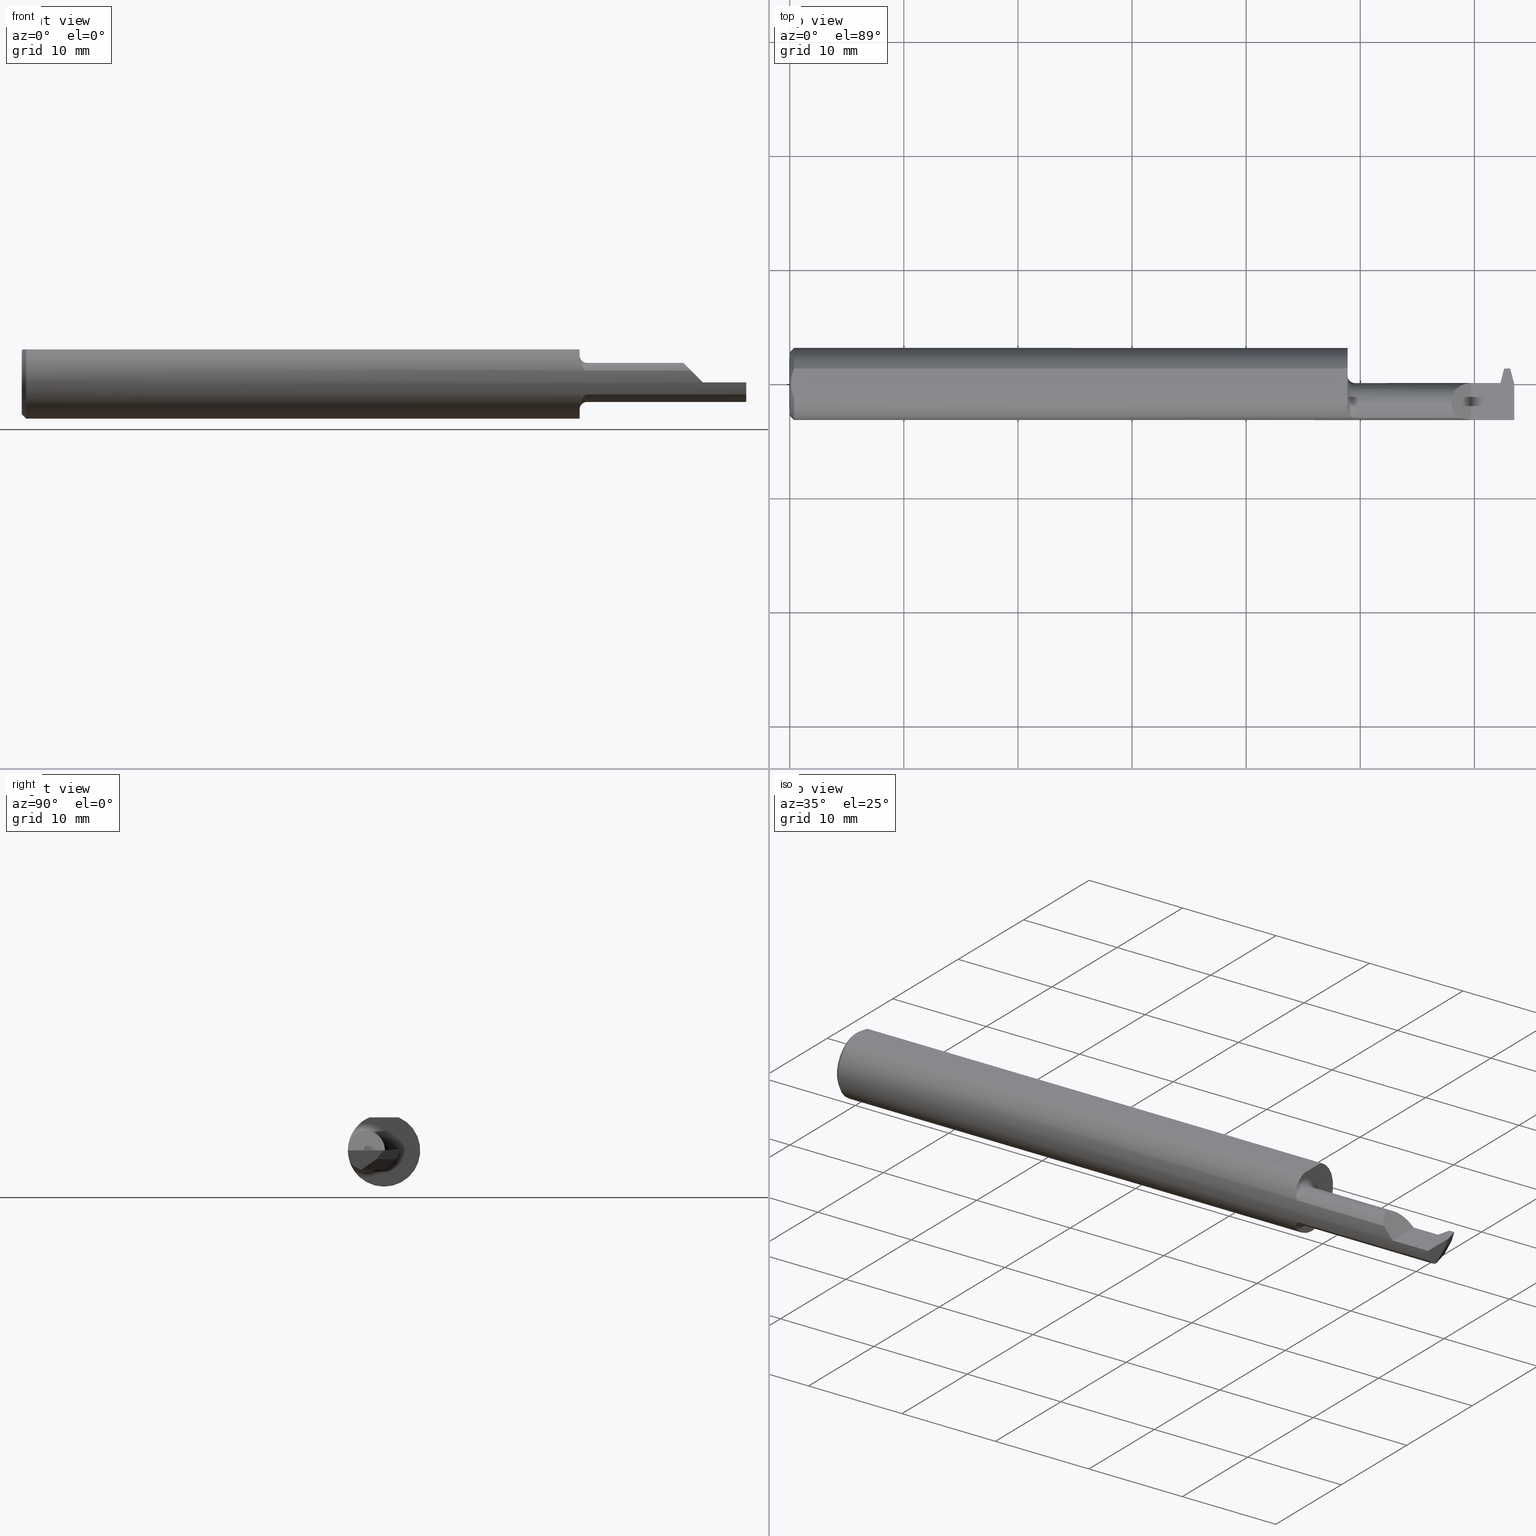
[diagram: canonical four-view strip — front | top / right | iso, engineering-drawing reading convention]
A machine part, canonical four-view strip (front | top / right | iso — engineering-drawing reading convention). The complete STEP part file that produces these views, byte-faithful:
ISO-10303-21;
HEADER;
FILE_DESCRIPTION (( 'STEP AP203' ),
    '1' );
FILE_NAME ('230907-FAT180500-16.STEP',
    '2024-04-30T20:59:03',
    ( '' ),
    ( '' ),
    'SwSTEP 2.0',
    'SolidWorks 2022',
    '' );
FILE_SCHEMA (( 'CONFIG_CONTROL_DESIGN' ));
ENDSEC;

DATA;
#1 = DIRECTION ( 'NONE',  ( -1.000000000000000000, -0.000000000000000000, -0.000000000000000000 ) ) ;
#2 = ORIENTED_EDGE ( 'NONE', *, *, #394, .F. ) ;
#3 = AXIS2_PLACEMENT_3D ( 'NONE', #531, #584, #139 ) ;
#4 = CIRCLE ( 'NONE', #106, 0.09250000000000002665 ) ;
#5 = AXIS2_PLACEMENT_3D ( 'NONE', #594, #137, #752 ) ;
#6 = CARTESIAN_POINT ( 'NONE',  ( 2.450000000000000178, 0.003149999999999988747, 0.000000000000000000 ) ) ;
#7 = CARTESIAN_POINT ( 'NONE',  ( 0.003999999999982594735, -1.276290005483319770E-15, 0.1138500000000000068 ) ) ;
#8 = ORIENTED_EDGE ( 'NONE', *, *, #299, .F. ) ;
#9 = EDGE_CURVE ( 'NONE', #245, #826, #964, .T. ) ;
#10 = DIRECTION ( 'NONE',  ( -1.000000000000000000, -9.583308650228410496E-16, 0.000000000000000000 ) ) ;
#11 = CARTESIAN_POINT ( 'NONE',  ( 2.350000000000000089, 0.1499999999999999944, 9.999999999961100661E-05 ) ) ;
#12 = LINE ( 'NONE', #98, #686 ) ;
#13 = EDGE_CURVE ( 'NONE', #71, #970, #798, .T. ) ;
#14 = ORIENTED_EDGE ( 'NONE', *, *, #715, .F. ) ;
#15 = EDGE_CURVE ( 'NONE', #806, #910, #346, .T. ) ;
#16 = CARTESIAN_POINT ( 'NONE',  ( 1.949999999999999956, -0.06435000000000003217, -0.09250000000000002665 ) ) ;
#17 = DIRECTION ( 'NONE',  ( -1.000000000000000000, -0.000000000000000000, -0.000000000000000000 ) ) ;
#18 = COORDINATED_UNIVERSAL_TIME_OFFSET ( 8, 0, .BEHIND. ) ;
#19 = ORIENTED_EDGE ( 'NONE', *, *, #593, .F. ) ;
#20 = DIRECTION ( 'NONE',  ( 1.000000000000000000, 0.000000000000000000, 0.000000000000000000 ) ) ;
#21 = VECTOR ( 'NONE', #738, 39.37007874015748143 ) ;
#22 = CARTESIAN_POINT ( 'NONE',  ( 2.438170679457906775, 0.001221809097012123728, -0.01856365049595226635 ) ) ;
#23 = APPROVAL_STATUS ( 'not_yet_approved' ) ;
#24 = VERTEX_POINT ( 'NONE', #58 ) ;
#25 = EDGE_CURVE ( 'NONE', #276, #254, #638, .T. ) ;
#26 = DIRECTION ( 'NONE',  ( 0.000000000000000000, 0.000000000000000000, 1.000000000000000000 ) ) ;
#27 = CARTESIAN_POINT ( 'NONE',  ( 2.500000000000000000, -0.0009839833285807519231, 0.000000000000000000 ) ) ;
#28 = EDGE_LOOP ( 'NONE', ( #186, #172, #349, #44 ) ) ;
#29 = APPROVAL ( #23, 'UNSPECIFIED' ) ;
#30 = CARTESIAN_POINT ( 'NONE',  ( 0.01499999999999970281, 0.000000000000000000, 0.000000000000000000 ) ) ;
#31 = CARTESIAN_POINT ( 'NONE',  ( 2.442069120782206060, 0.003149999999999970966, 0.000000000000000000 ) ) ;
#32 = DIRECTION ( 'NONE',  ( -1.000000000000000000, 0.000000000000000000, -0.000000000000000000 ) ) ;
#33 = ORIENTED_EDGE ( 'NONE', *, *, #89, .F. ) ;
#34 = VECTOR ( 'NONE', #514, 39.37007874015748143 ) ;
#35 = DIRECTION ( 'NONE',  ( 0.000000000000000000, -0.3255681544571571995, -0.9455185755993166241 ) ) ;
#36 = PERSON_AND_ORGANIZATION_ROLE ( 'creator' ) ;
#37 = CIRCLE ( 'NONE', #572, 0.06750000000000001832 ) ;
#38 = EDGE_LOOP ( 'NONE', ( #524, #426, #2, #633 ) ) ;
#39 =( GEOMETRIC_REPRESENTATION_CONTEXT ( 3 ) GLOBAL_UNCERTAINTY_ASSIGNED_CONTEXT ( ( #538 ) ) GLOBAL_UNIT_ASSIGNED_CONTEXT ( ( #851, #175, #555 ) ) REPRESENTATION_CONTEXT ( 'NONE', 'WORKASPACE' ) );
#40 = ORIENTED_EDGE ( 'NONE', *, *, #460, .T. ) ;
#41 = PLANE ( 'NONE',  #542 ) ;
#42 = COORDINATED_UNIVERSAL_TIME_OFFSET ( 8, 0, .BEHIND. ) ;
#43 = ORIENTED_EDGE ( 'NONE', *, *, #750, .T. ) ;
#44 = ORIENTED_EDGE ( 'NONE', *, *, #665, .T. ) ;
#45 = DIRECTION ( 'NONE',  ( 0.9116190025285794141, 0.2357607042868660741, -0.3367011798954063773 ) ) ;
#46 = ORIENTED_EDGE ( 'NONE', *, *, #750, .F. ) ;
#47 = ORIENTED_EDGE ( 'NONE', *, *, #850, .T. ) ;
#48 = CARTESIAN_POINT ( 'NONE',  ( 1.938797751365138877, -0.1151316249329346203, 0.04835186460175136536 ) ) ;
#49 = LINE ( 'NONE', #289, #635 ) ;
#50 = VECTOR ( 'NONE', #550, 39.37007874015748143 ) ;
#51 = ORIENTED_EDGE ( 'NONE', *, *, #314, .F. ) ;
#52 = AXIS2_PLACEMENT_3D ( 'NONE', #549, #467, #930 ) ;
#53 = ORIENTED_EDGE ( 'NONE', *, *, #727, .T. ) ;
#54 = CARTESIAN_POINT ( 'NONE',  ( 2.500000000000000000, 3.105312704339159513, 2.162671143948034391 ) ) ;
#55 = CYLINDRICAL_SURFACE ( 'NONE', #683, 0.06750000000000001832 ) ;
#56 = PERSON_AND_ORGANIZATION ( #876, #513 ) ;
#57 = EDGE_CURVE ( 'NONE', #503, #695, #780, .T. ) ;
#58 = CARTESIAN_POINT ( 'NONE',  ( 1.925000000000000044, -0.08680804195804191215, 0.08973230383429835200 ) ) ;
#59 = VERTEX_POINT ( 'NONE', #968 ) ;
#60 = PRODUCT_RELATED_PRODUCT_CATEGORY ( 'detail', '', ( #954 ) ) ;
#61 = DIMENSIONAL_EXPONENTS ( 1.000000000000000000, 0.000000000000000000, 0.000000000000000000, 0.000000000000000000, 0.000000000000000000, 0.000000000000000000, 0.000000000000000000 ) ;
#62 = CARTESIAN_POINT ( 'NONE',  ( 2.464999999999999858, 0.05314999999999989178, -3.367667473011537583E-17 ) ) ;
#63 = CARTESIAN_POINT ( 'NONE',  ( 2.500000000000000000, -0.07777569386178065369, -0.06615134726012476818 ) ) ;
#64 = LINE ( 'NONE', #156, #527 ) ;
#65 = VERTEX_POINT ( 'NONE', #872 ) ;
#66 = CARTESIAN_POINT ( 'NONE',  ( 2.350000000000000089, -0.1248499999999999888, -3.367667473011536351E-17 ) ) ;
#67 = PRODUCT_DEFINITION_SHAPE ( 'NONE', 'NONE',  #938 ) ;
#68 = DIRECTION ( 'NONE',  ( 0.000000000000000000, 0.000000000000000000, -1.000000000000000000 ) ) ;
#69 = CARTESIAN_POINT ( 'NONE',  ( 2.450000000000000178, -0.06435000000000004605, -0.06750000000000001832 ) ) ;
#70 = EDGE_CURVE ( 'NONE', #355, #953, #924, .T. ) ;
#71 = VERTEX_POINT ( 'NONE', #221 ) ;
#72 = AXIS2_PLACEMENT_3D ( 'NONE', #956, #280, #868 ) ;
#73 = AXIS2_PLACEMENT_3D ( 'NONE', #600, #678, #526 ) ;
#74 = EDGE_CURVE ( 'NONE', #953, #473, #312, .T. ) ;
#75 = CARTESIAN_POINT ( 'NONE',  ( 2.484965024898471597, 0.06811622730026126171, -0.004703944301048414330 ) ) ;
#76 = DIRECTION ( 'NONE',  ( 0.000000000000000000, 1.000000000000000000, -1.224646799147353207E-16 ) ) ;
#77 = LINE ( 'NONE', #377, #34 ) ;
#78 = EDGE_LOOP ( 'NONE', ( #984, #921, #284, #493, #974, #378, #845, #99, #94, #43, #206, #305, #529, #852 ) ) ;
#79 = CARTESIAN_POINT ( 'NONE',  ( 2.488472951119633514, -0.01006077264900668428, -0.1835774135135380680 ) ) ;
#80 = CARTESIAN_POINT ( 'NONE',  ( 2.450000000000000178, -0.003150120752352145604, -0.02999999999999952358 ) ) ;
#81 = DIRECTION ( 'NONE',  ( -1.000000000000000000, -0.000000000000000000, -0.000000000000000000 ) ) ;
#82 = ORIENTED_EDGE ( 'NONE', *, *, #639, .F. ) ;
#83 = LINE ( 'NONE', #721, #495 ) ;
#84 = CARTESIAN_POINT ( 'NONE',  ( 2.350000000000000089, 0.1499999999999999944, -3.367667473011537583E-17 ) ) ;
#85 = ADVANCED_FACE ( 'NONE', ( #147 ), #372, .F. ) ;
#86 = EDGE_LOOP ( 'NONE', ( #218, #626, #337, #309 ) ) ;
#87 = AXIS2_PLACEMENT_3D ( 'NONE', #443, #749, #591 ) ;
#88 = AXIS2_PLACEMENT_3D ( 'NONE', #138, #437, #742 ) ;
#89 = EDGE_CURVE ( 'NONE', #109, #124, #944, .T. ) ;
#90 = APPROVAL_PERSON_ORGANIZATION ( #469, #29, #773 ) ;
#91 = CARTESIAN_POINT ( 'NONE',  ( 2.500000000000000000, 0.000000000000000000, 0.000000000000000000 ) ) ;
#92 = DIRECTION ( 'NONE',  ( -1.000000000000000000, -0.000000000000000000, -0.000000000000000000 ) ) ;
#93 = CARTESIAN_POINT ( 'NONE',  ( 2.436366871395940326, -0.002552249386265828708, -0.02715304806246833860 ) ) ;
#94 = ORIENTED_EDGE ( 'NONE', *, *, #909, .T. ) ;
#95 = ADVANCED_FACE ( 'NONE', ( #671 ), #879, .T. ) ;
#96 = DIRECTION ( 'NONE',  ( -1.000000000000000000, -0.000000000000000000, -0.000000000000000000 ) ) ;
#97 = CARTESIAN_POINT ( 'NONE',  ( 1.925000000000000266, -0.09084981605085465373, -0.08582224602856410034 ) ) ;
#98 = CARTESIAN_POINT ( 'NONE',  ( 2.450000000000000178, 0.01517271303695656541, -0.01717021365936204427 ) ) ;
#99 = ORIENTED_EDGE ( 'NONE', *, *, #367, .F. ) ;
#100 = DIRECTION ( 'NONE',  ( 1.000000000000000000, 0.000000000000000000, 0.000000000000000000 ) ) ;
#101 = CARTESIAN_POINT ( 'NONE',  ( 1.925000000000000044, -0.06435000000000003217, 0.09250000000000002665 ) ) ;
#102 = ORIENTED_EDGE ( 'NONE', *, *, #748, .F. ) ;
#103 = EDGE_CURVE ( 'NONE', #805, #826, #825, .T. ) ;
#104 = DIRECTION ( 'NONE',  ( 0.000000000000000000, 0.000000000000000000, -1.000000000000000000 ) ) ;
#105 = VECTOR ( 'NONE', #674, 39.37007874015748143 ) ;
#106 = AXIS2_PLACEMENT_3D ( 'NONE', #813, #434, #986 ) ;
#107 = APPROVAL ( #957, 'UNSPECIFIED' ) ;
#108 = CARTESIAN_POINT ( 'NONE',  ( 2.496029762434592403, -0.06435000000000004605, -0.06750000000000001832 ) ) ;
#109 = VERTEX_POINT ( 'NONE', #304 ) ;
#110 = CARTESIAN_POINT ( 'NONE',  ( 1.949999999999999956, -0.06435000000000003217, -0.06750000000000001832 ) ) ;
#111 = CARTESIAN_POINT ( 'NONE',  ( 0.000000000000000000, 0.000000000000000000, 0.000000000000000000 ) ) ;
#112 = ORIENTED_EDGE ( 'NONE', *, *, #160, .T. ) ;
#113 = DIRECTION ( 'NONE',  ( 0.000000000000000000, 0.8191520442889929088, 0.5735764363510444941 ) ) ;
#114 = DATE_TIME_ROLE ( 'creation_date' ) ;
#115 = CARTESIAN_POINT ( 'NONE',  ( 2.500000000000000000, 0.000000000000000000, 0.000000000000000000 ) ) ;
#116 = CARTESIAN_POINT ( 'NONE',  ( 1.928561661930269677, -0.1044486834845270024, 0.06860236071768735511 ) ) ;
#117 = DATE_AND_TIME ( #502, #928 ) ;
#118 = CIRCLE ( 'NONE', #344, 0.06750000000000001832 ) ;
#119 = EDGE_CURVE ( 'NONE', #904, #810, #649, .T. ) ;
#120 = ORIENTED_EDGE ( 'NONE', *, *, #804, .F. ) ;
#121 = VERTEX_POINT ( 'NONE', #69 ) ;
#122 = CYLINDRICAL_SURFACE ( 'NONE', #895, 0.06750000000000001832 ) ;
#123 = CALENDAR_DATE ( 2024, 30, 4 ) ;
#124 = VERTEX_POINT ( 'NONE', #7 ) ;
#125 = ORIENTED_EDGE ( 'NONE', *, *, #596, .T. ) ;
#126 = FACE_OUTER_BOUND ( 'NONE', #28, .T. ) ;
#127 = DATE_TIME_ROLE ( 'classification_date' ) ;
#128 = ORIENTED_EDGE ( 'NONE', *, *, #13, .T. ) ;
#129 = ORIENTED_EDGE ( 'NONE', *, *, #654, .T. ) ;
#130 = CARTESIAN_POINT ( 'NONE',  ( 2.500000000000000000, -0.05124158467494929065, 0.1138500000000000068 ) ) ;
#131 = ADVANCED_FACE ( 'NONE', ( #983 ), #829, .F. ) ;
#132 = DIRECTION ( 'NONE',  ( 9.061196344492576331E-16, -0.9455185755993166241, 0.3255681544571571995 ) ) ;
#133 = VECTOR ( 'NONE', #92, 39.37007874015748143 ) ;
#134 = ORIENTED_EDGE ( 'NONE', *, *, #762, .F. ) ;
#135 = CIRCLE ( 'NONE', #399, 0.1248500000000000026 ) ;
#136 = SECURITY_CLASSIFICATION ( '', '', #658 ) ;
#137 = DIRECTION ( 'NONE',  ( -1.000000000000000000, -0.000000000000000000, -0.000000000000000000 ) ) ;
#138 = CARTESIAN_POINT ( 'NONE',  ( 2.446947195464070024, 3.128308802917997955, 2.162671143948034391 ) ) ;
#139 = DIRECTION ( 'NONE',  ( -1.000000000000000000, 0.000000000000000000, 0.000000000000000000 ) ) ;
#140 = EDGE_CURVE ( 'NONE', #286, #739, #634, .T. ) ;
#141 = CARTESIAN_POINT ( 'NONE',  ( 1.716419294199207135, 3.003735556698906350, -0.02999999999988876842 ) ) ;
#142 = DIRECTION ( 'NONE',  ( -0.000000000000000000, 0.000000000000000000, 1.000000000000000000 ) ) ;
#143 = EDGE_CURVE ( 'NONE', #910, #430, #77, .T. ) ;
#144 = EDGE_LOOP ( 'NONE', ( #857, #932 ) ) ;
#145 = CARTESIAN_POINT ( 'NONE',  ( 0.000000000000000000, 1.437123018799418518E-17, 0.1098499999999999199 ) ) ;
#146 = CARTESIAN_POINT ( 'NONE',  ( 2.498524702252900909, -0.07335304073178651463, -0.06704894329466547231 ) ) ;
#147 = FACE_OUTER_BOUND ( 'NONE', #959, .T. ) ;
#148 = ORIENTED_EDGE ( 'NONE', *, *, #866, .F. ) ;
#149 = VECTOR ( 'NONE', #353, 39.37007874015748854 ) ;
#150 = CIRCLE ( 'NONE', #298, 0.1098499999999999199 ) ;
#151 = VECTOR ( 'NONE', #587, 39.37007874015748143 ) ;
#152 = CARTESIAN_POINT ( 'NONE',  ( 2.350000000000000089, 0.003149925925885245243, 9.999999999961100661E-05 ) ) ;
#153 = CARTESIAN_POINT ( 'NONE',  ( 2.452069120782205847, 0.003149999999999971833, 0.000000000000000000 ) ) ;
#154 = ORIENTED_EDGE ( 'NONE', *, *, #982, .F. ) ;
#155 = CARTESIAN_POINT ( 'NONE',  ( 1.925000000000000044, 0.1000000000000000056, 0.1138500000000000068 ) ) ;
#156 = CARTESIAN_POINT ( 'NONE',  ( 2.455220163243291065, 0.09344901159057500406, -0.06750000000000003220 ) ) ;
#157 = ORIENTED_EDGE ( 'NONE', *, *, #70, .T. ) ;
#158 = ADVANCED_FACE ( 'NONE', ( #840 ), #675, .F. ) ;
#159 = CARTESIAN_POINT ( 'NONE',  ( 2.442069120782206060, 0.003149999999999970966, 0.000000000000000000 ) ) ;
#160 = EDGE_CURVE ( 'NONE', #543, #59, #439, .T. ) ;
#161 = CARTESIAN_POINT ( 'NONE',  ( 0.000000000000000000, 0.000000000000000000, 0.000000000000000000 ) ) ;
#162 = DIRECTION ( 'NONE',  ( -0.000000000000000000, 0.000000000000000000, 1.000000000000000000 ) ) ;
#163 = CC_DESIGN_PERSON_AND_ORGANIZATION_ASSIGNMENT ( #322, #244, ( #954 ) ) ;
#164 = ORIENTED_EDGE ( 'NONE', *, *, #569, .T. ) ;
#165 = VECTOR ( 'NONE', #385, 39.37007874015748143 ) ;
#166 = AXIS2_PLACEMENT_3D ( 'NONE', #692, #474, #861 ) ;
#167 = DESIGN_CONTEXT ( 'detailed design', #670, 'design' ) ;
#168 = PRODUCT_DEFINITION_FORMATION_WITH_SPECIFIED_SOURCE ( 'ANY', '', #954, .NOT_KNOWN. ) ;
#169 = FACE_OUTER_BOUND ( 'NONE', #386, .T. ) ;
#170 = DIRECTION ( 'NONE',  ( 0.000000000000000000, -0.8191520442889929088, -0.5735764363510444941 ) ) ;
#171 = APPLICATION_PROTOCOL_DEFINITION ( 'international standard', 'config_control_design', 1994, #352 ) ;
#172 = ORIENTED_EDGE ( 'NONE', *, *, #854, .F. ) ;
#173 = EDGE_CURVE ( 'NONE', #355, #254, #836, .T. ) ;
#174 = CYLINDRICAL_SURFACE ( 'NONE', #182, 0.1248500000000000026 ) ;
#175 =( NAMED_UNIT ( * ) PLANE_ANGLE_UNIT ( ) SI_UNIT ( $, .RADIAN. ) );
#176 = ORIENTED_EDGE ( 'NONE', *, *, #498, .F. ) ;
#177 = EDGE_CURVE ( 'NONE', #980, #222, #64, .T. ) ;
#178 = PLANE ( 'NONE',  #703 ) ;
#179 = CARTESIAN_POINT ( 'NONE',  ( 2.446947195464070024, -0.004283243744551786490, -0.03079342126085652526 ) ) ;
#180 = PLANE ( 'NONE',  #770 ) ;
#181 = ORIENTED_EDGE ( 'NONE', *, *, #267, .F. ) ;
#182 = AXIS2_PLACEMENT_3D ( 'NONE', #401, #17, #256 ) ;
#183 = CIRCLE ( 'NONE', #373, 0.06750000000000001832 ) ;
#184 = VECTOR ( 'NONE', #677, 39.37007874015748143 ) ;
#185 = CARTESIAN_POINT ( 'NONE',  ( 1.949999999999999956, -0.1178880730380729852, -0.04110869415792685333 ) ) ;
#186 = ORIENTED_EDGE ( 'NONE', *, *, #568, .T. ) ;
#187 = DIRECTION ( 'NONE',  ( 1.000000000000000000, 0.000000000000000000, 0.000000000000000000 ) ) ;
#188 = CARTESIAN_POINT ( 'NONE',  ( 2.336004490154644841, -0.1248387500886322388, 0.01409550984535482172 ) ) ;
#189 = ORIENTED_EDGE ( 'NONE', *, *, #951, .T. ) ;
#190 = EDGE_CURVE ( 'NONE', #245, #724, #366, .T. ) ;
#191 = PLANE ( 'NONE',  #864 ) ;
#192 = PERSON_AND_ORGANIZATION ( #876, #513 ) ;
#193 = ORIENTED_EDGE ( 'NONE', *, *, #140, .T. ) ;
#194 = ORIENTED_EDGE ( 'NONE', *, *, #510, .F. ) ;
#195 = VECTOR ( 'NONE', #361, 39.37007874015748854 ) ;
#196 = CARTESIAN_POINT ( 'NONE',  ( 2.350000000000000089, -0.1248499599519359016, 9.999999999961100661E-05 ) ) ;
#197 = PERSON_AND_ORGANIZATION_ROLE ( 'design_supplier' ) ;
#198 = CIRCLE ( 'NONE', #282, 0.1248500000000000026 ) ;
#199 = ORIENTED_EDGE ( 'NONE', *, *, #824, .T. ) ;
#200 = LOCAL_TIME ( 13, 59, 3.000000000000000000, #797 ) ;
#201 = EDGE_LOOP ( 'NONE', ( #602, #413, #444, #771, #612, #315 ) ) ;
#202 = CARTESIAN_POINT ( 'NONE',  ( 1.925000000000000266, -0.09084801577314524645, 0.08582398763750828663 ) ) ;
#203 = CARTESIAN_POINT ( 'NONE',  ( 2.500000000000000000, -0.07777569386178065369, -0.06615134726012476818 ) ) ;
#204 = COORDINATED_UNIVERSAL_TIME_OFFSET ( 8, 0, .BEHIND. ) ;
#205 = ORIENTED_EDGE ( 'NONE', *, *, #563, .T. ) ;
#206 = ORIENTED_EDGE ( 'NONE', *, *, #640, .T. ) ;
#207 = EDGE_CURVE ( 'NONE', #355, #806, #453, .T. ) ;
#208 = LINE ( 'NONE', #79, #704 ) ;
#209 = CARTESIAN_POINT ( 'NONE',  ( 1.925000000000000044, -0.06435000000000003217, -0.06750000000000001832 ) ) ;
#210 = APPROVAL_DATE_TIME ( #714, #839 ) ;
#211 = CARTESIAN_POINT ( 'NONE',  ( 2.350000000000000089, 0.003149925925885245243, 9.999999999961100661E-05 ) ) ;
#212 = EDGE_LOOP ( 'NONE', ( #181, #778, #199, #486 ) ) ;
#213 = CARTESIAN_POINT ( 'NONE',  ( 2.482164078575292976, 0.04282017160131335043, -0.02999999999999669251 ) ) ;
#214 = CARTESIAN_POINT ( 'NONE',  ( 2.496029762434592403, -0.06435000000000004605, -0.06750000000000001832 ) ) ;
#215 = DIRECTION ( 'NONE',  ( -1.000000000000000000, 0.000000000000000000, -0.000000000000000000 ) ) ;
#216 = CIRCLE ( 'NONE', #511, 0.1248500000000000026 ) ;
#217 = CC_DESIGN_APPROVAL ( #107, ( #168 ) ) ;
#218 = ORIENTED_EDGE ( 'NONE', *, *, #854, .T. ) ;
#219 = ADVANCED_BREP_SHAPE_REPRESENTATION ( '230907-FAT180500-16', ( #905, #835 ), #39 ) ;
#220 = CARTESIAN_POINT ( 'NONE',  ( 1.925000000000000044, 0.000000000000000000, 0.000000000000000000 ) ) ;
#221 = CARTESIAN_POINT ( 'NONE',  ( 2.450000000000000178, -0.002552249386265836081, -0.02715304806246837330 ) ) ;
#222 = VERTEX_POINT ( 'NONE', #685 ) ;
#223 = CARTESIAN_POINT ( 'NONE',  ( 2.350000000000000089, -0.06435000000000003217, 0.000000000000000000 ) ) ;
#224 = ADVANCED_FACE ( 'NONE', ( #382 ), #679, .F. ) ;
#225 = CARTESIAN_POINT ( 'NONE',  ( 0.01499999999999970281, 0.000000000000000000, 0.000000000000000000 ) ) ;
#226 = ORIENTED_EDGE ( 'NONE', *, *, #173, .F. ) ;
#227 = DIRECTION ( 'NONE',  ( 0.000000000000000000, -0.8191520442889929088, -0.5735764363510444941 ) ) ;
#228 = CARTESIAN_POINT ( 'NONE',  ( 2.500000000000000000, -0.02614621933119233924, -0.03000000000000118197 ) ) ;
#229 = DIRECTION ( 'NONE',  ( -0.2503800040544401084, 0.9681476403781081874, -9.645347760985759249E-17 ) ) ;
#230 = ORIENTED_EDGE ( 'NONE', *, *, #177, .F. ) ;
#231 = AXIS2_PLACEMENT_3D ( 'NONE', #515, #971, #310 ) ;
#232 = LOCAL_TIME ( 13, 59, 3.000000000000000000, #42 ) ;
#233 = DIRECTION ( 'NONE',  ( 1.000000000000000000, 0.000000000000000000, 0.000000000000000000 ) ) ;
#234 = DIRECTION ( 'NONE',  ( -1.000000000000000000, -1.461600159541601306E-15, -1.461600159541617675E-15 ) ) ;
#235 = EDGE_CURVE ( 'NONE', #739, #506, #459, .T. ) ;
#236 = ORIENTED_EDGE ( 'NONE', *, *, #982, .T. ) ;
#237 = EDGE_CURVE ( 'NONE', #286, #739, #693, .T. ) ;
#238 = DIRECTION ( 'NONE',  ( -1.000000000000000000, -1.067128122525113944E-16, 1.234058761993321499E-32 ) ) ;
#239 = CC_DESIGN_PERSON_AND_ORGANIZATION_ASSIGNMENT ( #412, #565, ( #136 ) ) ;
#240 = PLANE ( 'NONE',  #446 ) ;
#241 = ORIENTED_EDGE ( 'NONE', *, *, #523, .F. ) ;
#242 = DIRECTION ( 'NONE',  ( 0.000000000000000000, -0.7071067811865433539, -0.7071067811865514585 ) ) ;
#243 = DIRECTION ( 'NONE',  ( -1.000000000000000000, 0.000000000000000000, 0.000000000000000000 ) ) ;
#244 = PERSON_AND_ORGANIZATION_ROLE ( 'design_owner' ) ;
#245 = VERTEX_POINT ( 'NONE', #389 ) ;
#246 = CIRCLE ( 'NONE', #621, 0.1248500000000000026 ) ;
#247 = EDGE_CURVE ( 'NONE', #59, #286, #251, .T. ) ;
#248 = AXIS2_PLACEMENT_3D ( 'NONE', #763, #400, #26 ) ;
#249 = LOCAL_TIME ( 13, 59, 3.000000000000000000, #642 ) ;
#250 = PLANE ( 'NONE',  #52 ) ;
#251 = LINE ( 'NONE', #769, #133 ) ;
#252 = ADVANCED_FACE ( 'NONE', ( #859 ), #174, .T. ) ;
#253 = LINE ( 'NONE', #920, #737 ) ;
#254 = VERTEX_POINT ( 'NONE', #27 ) ;
#255 = DIRECTION ( 'NONE',  ( 0.000000000000000000, 0.000000000000000000, -1.000000000000000000 ) ) ;
#256 = DIRECTION ( 'NONE',  ( 0.000000000000000000, 0.000000000000000000, 1.000000000000000000 ) ) ;
#257 = VERTEX_POINT ( 'NONE', #101 ) ;
#258 = CARTESIAN_POINT ( 'NONE',  ( 1.949999999999999956, -0.06435000000000003217, 0.000000000000000000 ) ) ;
#259 = DIRECTION ( 'NONE',  ( 0.000000000000000000, 0.2055210070593990190, 0.9786527043120508695 ) ) ;
#260 = DIRECTION ( 'NONE',  ( -0.3464677099351416434, 0.000000000000000000, 0.9380618987957555222 ) ) ;
#261 = ORIENTED_EDGE ( 'NONE', *, *, #235, .F. ) ;
#262 = TOROIDAL_SURFACE ( 'NONE', #279, 0.09250000000000002665, 0.02500000000000000139 ) ;
#263 = CIRCLE ( 'NONE', #73, 0.09250000000000002665 ) ;
#264 = CC_DESIGN_APPROVAL ( #839, ( #136 ) ) ;
#265 = FACE_OUTER_BOUND ( 'NONE', #672, .T. ) ;
#266 = ORIENTED_EDGE ( 'NONE', *, *, #379, .T. ) ;
#267 = EDGE_CURVE ( 'NONE', #503, #454, #689, .T. ) ;
#268 = CARTESIAN_POINT ( 'NONE',  ( 1.932148820116562860, -0.1099047179638918265, 0.05947070158462895717 ) ) ;
#269 = DIRECTION ( 'NONE',  ( 1.000000000000000000, 0.000000000000000000, 0.000000000000000000 ) ) ;
#270 = CC_DESIGN_DATE_AND_TIME_ASSIGNMENT ( #117, #114, ( #938 ) ) ;
#271 = PERSON_AND_ORGANIZATION ( #876, #513 ) ;
#272 = CARTESIAN_POINT ( 'NONE',  ( 2.282599999999999962, -0.06435000000000003217, 0.06750000000000001832 ) ) ;
#273 = ORIENTED_EDGE ( 'NONE', *, *, #639, .T. ) ;
#274 = CARTESIAN_POINT ( 'NONE',  ( 2.440128569999999719, -0.01196363089143154951, -0.1891037151198633193 ) ) ;
#275 = APPROVAL_STATUS ( 'not_yet_approved' ) ;
#276 = VERTEX_POINT ( 'NONE', #483 ) ;
#277 = CARTESIAN_POINT ( 'NONE',  ( 1.947138575833328611, -0.1178880730380729991, 0.04110869415792683251 ) ) ;
#278 = EDGE_CURVE ( 'NONE', #543, #71, #321, .T. ) ;
#279 = AXIS2_PLACEMENT_3D ( 'NONE', #855, #849, #468 ) ;
#280 = DIRECTION ( 'NONE',  ( 1.000000000000000000, -0.000000000000000000, -0.000000000000000000 ) ) ;
#281 = APPROVAL_ROLE ( '' ) ;
#282 = AXIS2_PLACEMENT_3D ( 'NONE', #30, #644, #790 ) ;
#283 = ADVANCED_FACE ( 'NONE', ( #396 ), #615, .F. ) ;
#284 = ORIENTED_EDGE ( 'NONE', *, *, #207, .T. ) ;
#285 = CC_DESIGN_APPROVAL ( #29, ( #938 ) ) ;
#286 = VERTEX_POINT ( 'NONE', #179 ) ;
#287 = CC_DESIGN_PERSON_AND_ORGANIZATION_ASSIGNMENT ( #56, #36, ( #168 ) ) ;
#288 = FACE_OUTER_BOUND ( 'NONE', #580, .T. ) ;
#289 = CARTESIAN_POINT ( 'NONE',  ( 2.465568958685582679, 0.05535000000000005194, 0.000000000000000000 ) ) ;
#290 = CARTESIAN_POINT ( 'NONE',  ( 1.925000000000000044, -0.002552249386265908072, -0.02715304806246850514 ) ) ;
#291 = ORIENTED_EDGE ( 'NONE', *, *, #510, .T. ) ;
#292 = CARTESIAN_POINT ( 'NONE',  ( 1.949999999999999956, -0.06435000000000003217, 0.000000000000000000 ) ) ;
#293 = ORIENTED_EDGE ( 'NONE', *, *, #478, .T. ) ;
#294 = ORIENTED_EDGE ( 'NONE', *, *, #143, .F. ) ;
#295 = ADVANCED_FACE ( 'NONE', ( #540 ), #262, .F. ) ;
#296 = CARTESIAN_POINT ( 'NONE',  ( 0.01499999999999970281, 0.000000000000000000, -0.1248500000000000026 ) ) ;
#297 = DIRECTION ( 'NONE',  ( 0.000000000000000000, 0.000000000000000000, -1.000000000000000000 ) ) ;
#298 = AXIS2_PLACEMENT_3D ( 'NONE', #772, #96, #255 ) ;
#299 = EDGE_CURVE ( 'NONE', #506, #121, #816, .T. ) ;
#300 = ORIENTED_EDGE ( 'NONE', *, *, #481, .F. ) ;
#301 = EDGE_CURVE ( 'NONE', #970, #430, #567, .T. ) ;
#302 = CARTESIAN_POINT ( 'NONE',  ( 2.282599999999999518, -0.08571428085691458476, 0.06750000000000000444 ) ) ;
#303 = LINE ( 'NONE', #902, #356 ) ;
#304 = CARTESIAN_POINT ( 'NONE',  ( 0.01499999999999970281, 0.05124158467494929065, 0.1138500000000000068 ) ) ;
#305 = ORIENTED_EDGE ( 'NONE', *, *, #748, .T. ) ;
#306 = CARTESIAN_POINT ( 'NONE',  ( 2.498851653931791983, 0.1053268472866106809, -0.06750000000000003220 ) ) ;
#307 = CARTESIAN_POINT ( 'NONE',  ( 1.925000000000000044, -0.06435000000000003217, 0.000000000000000000 ) ) ;
#308 = CARTESIAN_POINT ( 'NONE',  ( 2.450000000000000178, 0.01517271303695656541, -0.01717021365936204427 ) ) ;
#309 = ORIENTED_EDGE ( 'NONE', *, *, #654, .F. ) ;
#310 = DIRECTION ( 'NONE',  ( 0.000000000000000000, -1.000000000000000000, 1.008033037487503485E-16 ) ) ;
#311 = DIRECTION ( 'NONE',  ( -1.000000000000000000, -0.000000000000000000, -0.000000000000000000 ) ) ;
#312 = LINE ( 'NONE', #979, #847 ) ;
#313 = AXIS2_PLACEMENT_3D ( 'NONE', #161, #472, #318 ) ;
#314 = EDGE_CURVE ( 'NONE', #431, #473, #409, .T. ) ;
#315 = ORIENTED_EDGE ( 'NONE', *, *, #498, .T. ) ;
#316 = VECTOR ( 'NONE', #512, 39.37007874015748143 ) ;
#317 = DIRECTION ( 'NONE',  ( 0.000000000000000000, 0.000000000000000000, -1.000000000000000000 ) ) ;
#318 = DIRECTION ( 'NONE',  ( 0.000000000000000000, 0.000000000000000000, -1.000000000000000000 ) ) ;
#319 = VERTEX_POINT ( 'NONE', #787 ) ;
#320 = CARTESIAN_POINT ( 'NONE',  ( 2.500000000000000000, -0.05670567100518226350, -0.06750000000000001832 ) ) ;
#321 = LINE ( 'NONE', #776, #557 ) ;
#322 = PERSON_AND_ORGANIZATION ( #876, #513 ) ;
#323 = EDGE_LOOP ( 'NONE', ( #765, #112, #955 ) ) ;
#324 = DIRECTION ( 'NONE',  ( 0.000000000000000000, 0.000000000000000000, 1.000000000000000000 ) ) ;
#325 = CARTESIAN_POINT ( 'NONE',  ( 1.934341522824309489, -0.1122386781385961430, -0.05488888332692708205 ) ) ;
#326 = CARTESIAN_POINT ( 'NONE',  ( 2.450000000000000178, 0.003149999999999988747, 0.000000000000000000 ) ) ;
#327 = ORIENTED_EDGE ( 'NONE', *, *, #909, .F. ) ;
#328 = VECTOR ( 'NONE', #406, 39.37007874015748143 ) ;
#329 = AXIS2_PLACEMENT_3D ( 'NONE', #427, #729, #962 ) ;
#330 = AXIS2_PLACEMENT_3D ( 'NONE', #786, #405, #708 ) ;
#331 = PLANE ( 'NONE',  #166 ) ;
#332 = CARTESIAN_POINT ( 'NONE',  ( 2.446947195464070024, 3.128308802917997955, 2.162671143948034391 ) ) ;
#333 = DIRECTION ( 'NONE',  ( -0.9116190025285898502, 0.2357607042868530567, -0.3367011798953876145 ) ) ;
#334 = VERTEX_POINT ( 'NONE', #110 ) ;
#335 = CARTESIAN_POINT ( 'NONE',  ( 2.500000000000000000, -0.0005776289714501376240, 0.0004844812167191136143 ) ) ;
#336 = CARTESIAN_POINT ( 'NONE',  ( 1.928579630862569783, -0.1044777942651883146, -0.06855471305740289123 ) ) ;
#337 = ORIENTED_EDGE ( 'NONE', *, *, #874, .T. ) ;
#338 = FACE_OUTER_BOUND ( 'NONE', #788, .T. ) ;
#339 = CARTESIAN_POINT ( 'NONE',  ( 2.500000000000000000, 0.005320171601310353347, -0.06750000000000001832 ) ) ;
#340 = DIRECTION ( 'NONE',  ( 0.000000000000000000, -0.2055210070593990190, -0.9786527043120508695 ) ) ;
#341 = ADVANCED_FACE ( 'NONE', ( #710 ), #240, .T. ) ;
#342 = ORIENTED_EDGE ( 'NONE', *, *, #301, .F. ) ;
#343 = CC_DESIGN_PERSON_AND_ORGANIZATION_ASSIGNMENT ( #192, #646, ( #938 ) ) ;
#344 = AXIS2_PLACEMENT_3D ( 'NONE', #496, #802, #653 ) ;
#345 = CARTESIAN_POINT ( 'NONE',  ( 2.500000000000000000, -0.06435000000000004605, -0.06750000000000001832 ) ) ;
#346 = LINE ( 'NONE', #890, #462 ) ;
#347 = VERTEX_POINT ( 'NONE', #203 ) ;
#348 = LINE ( 'NONE', #940, #149 ) ;
#349 = ORIENTED_EDGE ( 'NONE', *, *, #25, .T. ) ;
#350 = VERTEX_POINT ( 'NONE', #559 ) ;
#351 = ADVANCED_FACE ( 'NONE', ( #265 ), #41, .T. ) ;
#352 = APPLICATION_CONTEXT ( 'configuration controlled 3d designs of mechanical parts and assemblies' ) ;
#353 = DIRECTION ( 'NONE',  ( 0.07805664651022149736, -0.7049493456751225740, -0.7049493456751305676 ) ) ;
#354 = EDGE_LOOP ( 'NONE', ( #14, #592, #33, #425, #194 ) ) ;
#355 = VERTEX_POINT ( 'NONE', #631 ) ;
#356 = VECTOR ( 'NONE', #981, 39.37007874015748143 ) ;
#357 = DIRECTION ( 'NONE',  ( 1.000000000000000000, 0.000000000000000000, 0.000000000000000000 ) ) ;
#358 = VERTEX_POINT ( 'NONE', #875 ) ;
#359 = CARTESIAN_POINT ( 'NONE',  ( 2.452069120782205847, 0.003149999999999971833, 0.000000000000000000 ) ) ;
#360 = CARTESIAN_POINT ( 'NONE',  ( 2.350000000000000089, 0.000000000000000000, 0.000000000000000000 ) ) ;
#361 = DIRECTION ( 'NONE',  ( 0.2503800040544350014, -0.9681476403781094087, 0.000000000000000000 ) ) ;
#362 = ADVANCED_FACE ( 'NONE', ( #411 ), #494, .T. ) ;
#363 = ORIENTED_EDGE ( 'NONE', *, *, #569, .F. ) ;
#364 = DIRECTION ( 'NONE',  ( -0.1200238624775787216, 0.3232146245633321646, 0.9386834284807350492 ) ) ;
#365 = DIRECTION ( 'NONE',  ( 1.000000000000000000, 0.000000000000000000, 0.000000000000000000 ) ) ;
#366 = LINE ( 'NONE', #153, #165 ) ;
#367 = EDGE_CURVE ( 'NONE', #402, #24, #246, .T. ) ;
#368 = ORIENTED_EDGE ( 'NONE', *, *, #9, .T. ) ;
#369 = CARTESIAN_POINT ( 'NONE',  ( 2.461507946512106582, -0.01280513349983794687, -0.1915476161487898177 ) ) ;
#370 = PLANE ( 'NONE',  #88 ) ;
#371 = VECTOR ( 'NONE', #234, 39.37007874015748143 ) ;
#372 = PLANE ( 'NONE',  #781 ) ;
#373 = AXIS2_PLACEMENT_3D ( 'NONE', #912, #365, #978 ) ;
#374 = ORIENTED_EDGE ( 'NONE', *, *, #715, .T. ) ;
#375 = CARTESIAN_POINT ( 'NONE',  ( 0.005080301127456087092, -0.01778481300359936387, 0.1138500000000000206 ) ) ;
#376 = DIRECTION ( 'NONE',  ( 1.000000000000000000, 0.000000000000000000, 0.000000000000000000 ) ) ;
#377 = CARTESIAN_POINT ( 'NONE',  ( 1.925000000000000044, 0.003149999999999980507, -3.367667473011537583E-17 ) ) ;
#378 = ORIENTED_EDGE ( 'NONE', *, *, #906, .F. ) ;
#379 = EDGE_CURVE ( 'NONE', #121, #334, #487, .T. ) ;
#380 = CARTESIAN_POINT ( 'NONE',  ( 2.187500000000000000, -0.1178880730380729852, 0.04110869415792685333 ) ) ;
#381 = DIRECTION ( 'NONE',  ( 0.000000000000000000, 0.000000000000000000, -1.000000000000000000 ) ) ;
#382 = FACE_OUTER_BOUND ( 'NONE', #961, .T. ) ;
#383 = ORIENTED_EDGE ( 'NONE', *, *, #119, .F. ) ;
#384 = CARTESIAN_POINT ( 'NONE',  ( 2.308991305842072794, -0.1178880730380730268, 0.04110869415792675619 ) ) ;
#385 = DIRECTION ( 'NONE',  ( -0.1571540165094713060, 0.2029672248372563215, 0.9664920696709329295 ) ) ;
#386 = EDGE_LOOP ( 'NONE', ( #811, #120, #499, #226, #157 ) ) ;
#387 = AXIS2_PLACEMENT_3D ( 'NONE', #972, #76, #892 ) ;
#388 = VECTOR ( 'NONE', #966, 39.37007874015748143 ) ;
#389 = CARTESIAN_POINT ( 'NONE',  ( 2.456947195464070255, -0.003150120752351898406, -0.02999999999999967970 ) ) ;
#390 = ORIENTED_EDGE ( 'NONE', *, *, #867, .T. ) ;
#391 = CARTESIAN_POINT ( 'NONE',  ( 0.01499999999999970281, 0.000000000000000000, 0.000000000000000000 ) ) ;
#392 = CARTESIAN_POINT ( 'NONE',  ( 2.436366871395940326, -0.002552249386265828708, -0.02715304806246833860 ) ) ;
#393 = EDGE_LOOP ( 'NONE', ( #719, #383, #291, #46, #785 ) ) ;
#394 = EDGE_CURVE ( 'NONE', #826, #65, #348, .T. ) ;
#395 = CARTESIAN_POINT ( 'NONE',  ( 1.949999999999999956, -0.06435000000000003217, 0.000000000000000000 ) ) ;
#396 = FACE_OUTER_BOUND ( 'NONE', #687, .T. ) ;
#397 = PLANE ( 'NONE',  #943 ) ;
#398 = ORIENTED_EDGE ( 'NONE', *, *, #177, .T. ) ;
#399 = AXIS2_PLACEMENT_3D ( 'NONE', #391, #533, #610 ) ;
#400 = DIRECTION ( 'NONE',  ( 1.000000000000000000, -0.000000000000000000, -0.000000000000000000 ) ) ;
#401 = CARTESIAN_POINT ( 'NONE',  ( 2.500000000000000000, 0.000000000000000000, 0.000000000000000000 ) ) ;
#402 = VERTEX_POINT ( 'NONE', #792 ) ;
#403 = ADVANCED_FACE ( 'NONE', ( #952 ), #191, .F. ) ;
#404 =( BOUNDED_CURVE ( )  B_SPLINE_CURVE ( 3, ( #214, #967, #146, #63 ),
 .UNSPECIFIED., .F., .T. ) 
 B_SPLINE_CURVE_WITH_KNOTS ( ( 4, 4 ),
 ( 0.6108652381980129720, 0.8110997559319969019 ),
 .UNSPECIFIED. ) 
 CURVE ( )  GEOMETRIC_REPRESENTATION_ITEM ( )  RATIONAL_B_SPLINE_CURVE ( ( 1.000000000000000000, 0.9966616347228353101, 0.9966616347228353101, 1.000000000000000000 ) ) 
 REPRESENTATION_ITEM ( '' )  );
#405 = DIRECTION ( 'NONE',  ( -1.000000000000000000, -0.000000000000000000, -0.000000000000000000 ) ) ;
#406 = DIRECTION ( 'NONE',  ( 0.000000000000000000, -1.000000000000000000, 0.000000000000000000 ) ) ;
#407 = EDGE_CURVE ( 'NONE', #980, #121, #570, .T. ) ;
#408 = DIRECTION ( 'NONE',  ( 0.000000000000000000, 0.000000000000000000, 1.000000000000000000 ) ) ;
#409 = B_SPLINE_CURVE_WITH_KNOTS ( 'NONE', 3,
 ( #926, #97, #782, #706, #336, #628, #325, #619, #916, #554, #862, #185 ),
 .UNSPECIFIED., .F., .F.,
 ( 4, 2, 2, 2, 2, 4 ),
 ( 0.000000000000000000, 0.0004231261345662541500, 0.0008462522691325083000, 0.001269378403698762396, 0.001480941470981889715, 0.001692504538265017251 ),
 .UNSPECIFIED. ) ;
#410 = ORIENTED_EDGE ( 'NONE', *, *, #235, .T. ) ;
#411 = FACE_OUTER_BOUND ( 'NONE', #354, .T. ) ;
#412 = PERSON_AND_ORGANIZATION ( #876, #513 ) ;
#413 = ORIENTED_EDGE ( 'NONE', *, *, #407, .F. ) ;
#414 = AXIS2_PLACEMENT_3D ( 'NONE', #597, #522, #606 ) ;
#415 = CARTESIAN_POINT ( 'NONE',  ( 1.927257066675622799, -0.1013963922970315401, 0.07304981880275966677 ) ) ;
#416 = CIRCLE ( 'NONE', #387, 0.02500000000000000486 ) ;
#417 = VECTOR ( 'NONE', #432, 39.37007874015748143 ) ;
#418 = CARTESIAN_POINT ( 'NONE',  ( 2.322206397681024992, -0.1224963014591190363, 0.02789360231897465570 ) ) ;
#419 = APPROVAL_DATE_TIME ( #424, #107 ) ;
#420 = EDGE_CURVE ( 'NONE', #454, #702, #985, .T. ) ;
#421 = ORIENTED_EDGE ( 'NONE', *, *, #509, .T. ) ;
#422 = ORIENTED_EDGE ( 'NONE', *, *, #173, .T. ) ;
#423 = CARTESIAN_POINT ( 'NONE',  ( 1.925000000000000044, 0.000000000000000000, 0.000000000000000000 ) ) ;
#424 = DATE_AND_TIME ( #490, #249 ) ;
#425 = ORIENTED_EDGE ( 'NONE', *, *, #640, .F. ) ;
#426 = ORIENTED_EDGE ( 'NONE', *, *, #460, .F. ) ;
#427 = CARTESIAN_POINT ( 'NONE',  ( 2.485431041314417833, 0.05535000000000005194, 0.000000000000000000 ) ) ;
#428 = DIRECTION ( 'NONE',  ( 0.000000000000000000, 0.000000000000000000, 1.000000000000000000 ) ) ;
#429 = CALENDAR_DATE ( 2024, 30, 4 ) ;
#430 = VERTEX_POINT ( 'NONE', #31 ) ;
#431 = VERTEX_POINT ( 'NONE', #884 ) ;
#432 = DIRECTION ( 'NONE',  ( -1.000000000000000000, -0.000000000000000000, -0.000000000000000000 ) ) ;
#433 = VECTOR ( 'NONE', #668, 39.37007874015748143 ) ;
#434 = DIRECTION ( 'NONE',  ( -1.000000000000000000, -0.000000000000000000, -0.000000000000000000 ) ) ;
#435 = VERTEX_POINT ( 'NONE', #946 ) ;
#436 = LINE ( 'NONE', #369, #636 ) ;
#437 = DIRECTION ( 'NONE',  ( 1.000000000000000000, 0.000000000000000000, 0.000000000000000000 ) ) ;
#438 = EDGE_CURVE ( 'NONE', #71, #59, #118, .T. ) ;
#439 = LINE ( 'NONE', #308, #588 ) ;
#440 = VERTEX_POINT ( 'NONE', #725 ) ;
#441 = FACE_OUTER_BOUND ( 'NONE', #942, .T. ) ;
#442 = B_SPLINE_CURVE_WITH_KNOTS ( 'NONE', 3,
 ( #562, #277, #945, #651, #48, #883, #268, #116, #415, #500, #202, #807 ),
 .UNSPECIFIED., .F., .F.,
 ( 4, 2, 2, 2, 2, 4 ),
 ( 0.000000000000000000, 0.0002139781332481023612, 0.0004279562664962047224, 0.0008559125329924097700, 0.001283868799488614709, 0.001711825065984819974 ),
 .UNSPECIFIED. ) ;
#443 = CARTESIAN_POINT ( 'NONE',  ( 0.000000000000000000, 0.000000000000000000, 0.000000000000000000 ) ) ;
#444 = ORIENTED_EDGE ( 'NONE', *, *, #523, .T. ) ;
#445 = DIRECTION ( 'NONE',  ( 0.000000000000000000, 0.000000000000000000, 1.000000000000000000 ) ) ;
#446 = AXIS2_PLACEMENT_3D ( 'NONE', #534, #843, #113 ) ;
#447 = CARTESIAN_POINT ( 'NONE',  ( 0.003999999999999733803, 0.008800694614867364887, 0.1138500000000000068 ) ) ;
#448 = ADVANCED_FACE ( 'NONE', ( #564 ), #122, .T. ) ;
#449 = CIRCLE ( 'NONE', #941, 0.1248500000000000026 ) ;
#450 = EDGE_LOOP ( 'NONE', ( #470, #936, #53, #629 ) ) ;
#451 = CARTESIAN_POINT ( 'NONE',  ( 0.01499999999999969413, -0.05124158467494929065, 0.1138500000000000068 ) ) ;
#452 = LINE ( 'NONE', #838, #105 ) ;
#453 = LINE ( 'NONE', #760, #767 ) ;
#454 = VERTEX_POINT ( 'NONE', #731 ) ;
#455 = CARTESIAN_POINT ( 'NONE',  ( 2.399999999999999911, 0.07282017160130961619, 0.000000000000000000 ) ) ;
#456 = CARTESIAN_POINT ( 'NONE',  ( 0.01499999999999970281, 0.05124158467494929065, 0.1138500000000000068 ) ) ;
#457 = ORIENTED_EDGE ( 'NONE', *, *, #247, .F. ) ;
#458 = CARTESIAN_POINT ( 'NONE',  ( 2.350000000000000089, 0.05314999999999978075, -3.367667473011537583E-17 ) ) ;
#459 = LINE ( 'NONE', #934, #50 ) ;
#460 = EDGE_CURVE ( 'NONE', #65, #222, #578, .T. ) ;
#461 = CARTESIAN_POINT ( 'NONE',  ( 2.456947195464070255, 3.128308802917997955, 2.162671143948034391 ) ) ;
#462 = VECTOR ( 'NONE', #814, 39.37007874015748143 ) ;
#463 = ORIENTED_EDGE ( 'NONE', *, *, #160, .F. ) ;
#464 = AXIS2_PLACEMENT_3D ( 'NONE', #292, #376, #590 ) ;
#465 = AXIS2_PLACEMENT_3D ( 'NONE', #461, #333, #260 ) ;
#466 = ADVANCED_FACE ( 'NONE', ( #796 ), #848, .F. ) ;
#467 = DIRECTION ( 'NONE',  ( 0.9474803064293684240, -0.2450350680735325082, 0.2055210070593990190 ) ) ;
#468 = DIRECTION ( 'NONE',  ( 0.000000000000000000, 0.000000000000000000, -1.000000000000000000 ) ) ;
#469 = PERSON_AND_ORGANIZATION ( #876, #513 ) ;
#470 = ORIENTED_EDGE ( 'NONE', *, *, #509, .F. ) ;
#471 = DIRECTION ( 'NONE',  ( 0.000000000000000000, -1.000000000000000000, 0.000000000000000000 ) ) ;
#472 = DIRECTION ( 'NONE',  ( 1.000000000000000000, 0.000000000000000000, 0.000000000000000000 ) ) ;
#473 = VERTEX_POINT ( 'NONE', #889 ) ;
#474 = DIRECTION ( 'NONE',  ( -0.7071067811865483499, 0.000000000000000000, -0.7071067811865466846 ) ) ;
#475 = CARTESIAN_POINT ( 'NONE',  ( 2.450000000000000178, -0.06435000000000003217, 0.000000000000000000 ) ) ;
#476 = CARTESIAN_POINT ( 'NONE',  ( 2.456947195464070255, -0.05670567100518226350, -0.06750000000000030975 ) ) ;
#477 = EDGE_LOOP ( 'NONE', ( #8, #841, #691 ) ) ;
#478 = EDGE_CURVE ( 'NONE', #724, #860, #49, .T. ) ;
#479 = VECTOR ( 'NONE', #908, 39.37007874015748143 ) ;
#480 = AXIS2_PLACEMENT_3D ( 'NONE', #258, #100, #104 ) ;
#481 = EDGE_CURVE ( 'NONE', #440, #431, #4, .T. ) ;
#482 = CYLINDRICAL_SURFACE ( 'NONE', #330, 0.06750000000000001832 ) ;
#483 = CARTESIAN_POINT ( 'NONE',  ( 2.486000000000000654, 0.05314999999999992647, 0.000000000000000000 ) ) ;
#484 = CC_DESIGN_PERSON_AND_ORGANIZATION_ASSIGNMENT ( #271, #197, ( #168 ) ) ;
#485 =( LENGTH_UNIT ( ) NAMED_UNIT ( * ) SI_UNIT ( $, .METRE. ) );
#486 = ORIENTED_EDGE ( 'NONE', *, *, #420, .F. ) ;
#487 = LINE ( 'NONE', #209, #832 ) ;
#488 = CARTESIAN_POINT ( 'NONE',  ( 2.310505889776659494, 0.003091416068753647349, 0.03959411022334007740 ) ) ;
#489 = DIRECTION ( 'NONE',  ( -0.3464677099351621270, 0.000000000000000000, -0.9380618987957481947 ) ) ;
#490 = CALENDAR_DATE ( 2024, 30, 4 ) ;
#491 = ADVANCED_FACE ( 'NONE', ( #595 ), #370, .T. ) ;
#492 = DIRECTION ( 'NONE',  ( -1.000000000000000000, -0.000000000000000000, -0.000000000000000000 ) ) ;
#493 = ORIENTED_EDGE ( 'NONE', *, *, #609, .T. ) ;
#494 = CONICAL_SURFACE ( 'NONE', #72, 0.1248500000000000026, 0.7853981633974608245 ) ;
#495 = VECTOR ( 'NONE', #187, 39.37007874015748143 ) ;
#496 = CARTESIAN_POINT ( 'NONE',  ( 2.450000000000000178, -0.06435000000000003217, 0.000000000000000000 ) ) ;
#497 = VERTEX_POINT ( 'NONE', #228 ) ;
#498 = EDGE_CURVE ( 'NONE', #473, #334, #183, .T. ) ;
#499 = ORIENTED_EDGE ( 'NONE', *, *, #665, .F. ) ;
#500 = CARTESIAN_POINT ( 'NONE',  ( 1.925472843869164397, -0.09461185655952933371, 0.08164619401006140142 ) ) ;
#501 = CARTESIAN_POINT ( 'NONE',  ( 1.925000000000000044, -0.06435000000000003217, 0.000000000000000000 ) ) ;
#502 = CALENDAR_DATE ( 2024, 30, 4 ) ;
#503 = VERTEX_POINT ( 'NONE', #152 ) ;
#504 = DIRECTION ( 'NONE',  ( 0.2503800040544323924, 0.9681476403781100748, -0.000000000000000000 ) ) ;
#505 = PERSON_AND_ORGANIZATION ( #876, #513 ) ;
#506 = VERTEX_POINT ( 'NONE', #662 ) ;
#507 = EDGE_CURVE ( 'NONE', #245, #929, #583, .T. ) ;
#508 = ORIENTED_EDGE ( 'NONE', *, *, #367, .T. ) ;
#509 = EDGE_CURVE ( 'NONE', #319, #257, #416, .T. ) ;
#510 = EDGE_CURVE ( 'NONE', #904, #561, #452, .T. ) ;
#511 = AXIS2_PLACEMENT_3D ( 'NONE', #360, #657, #324 ) ;
#512 = DIRECTION ( 'NONE',  ( -1.000000000000000000, -0.000000000000000000, -0.000000000000000000 ) ) ;
#513 = ORGANIZATION ( 'UNSPECIFIED', 'UNSPECIFIED', '' ) ;
#514 = DIRECTION ( 'NONE',  ( 1.000000000000000000, 0.000000000000000000, 0.000000000000000000 ) ) ;
#515 = CARTESIAN_POINT ( 'NONE',  ( 2.500000000000000000, 0.1050298648004461544, -0.06750000000000003220 ) ) ;
#516 = LINE ( 'NONE', #141, #784 ) ;
#517 = DIRECTION ( 'NONE',  ( 1.000000000000000000, 0.000000000000000000, 0.000000000000000000 ) ) ;
#518 = ORIENTED_EDGE ( 'NONE', *, *, #727, .F. ) ;
#519 = LINE ( 'NONE', #306, #819 ) ;
#520 = EDGE_CURVE ( 'NONE', #319, #350, #976, .T. ) ;
#521 = DIRECTION ( 'NONE',  ( -1.000000000000000000, -0.000000000000000000, -0.000000000000000000 ) ) ;
#522 = DIRECTION ( 'NONE',  ( -0.9786527043120508695, 3.341913033461227162E-15, 0.2055210070593990190 ) ) ;
#523 = EDGE_CURVE ( 'NONE', #980, #347, #404, .T. ) ;
#524 = ORIENTED_EDGE ( 'NONE', *, *, #867, .F. ) ;
#525 = EDGE_CURVE ( 'NONE', #695, #319, #898, .T. ) ;
#526 = DIRECTION ( 'NONE',  ( 0.000000000000000000, 5.352945392990784272E-15, -1.000000000000000000 ) ) ;
#527 = VECTOR ( 'NONE', #229, 39.37007874015748143 ) ;
#528 = CARTESIAN_POINT ( 'NONE',  ( 0.01167190377471843954, 0.04313268608482607319, 0.1138500000000000068 ) ) ;
#529 = ORIENTED_EDGE ( 'NONE', *, *, #563, .F. ) ;
#530 = DIRECTION ( 'NONE',  ( -0.2503800040544278405, 0.9681476403781111850, 3.530638809654075041E-14 ) ) ;
#531 = CARTESIAN_POINT ( 'NONE',  ( 2.350000000000000089, 0.1499999999999999944, -3.367667473011537583E-17 ) ) ;
#532 = ORIENTED_EDGE ( 'NONE', *, *, #299, .T. ) ;
#533 = DIRECTION ( 'NONE',  ( 1.000000000000000000, -0.000000000000000000, -0.000000000000000000 ) ) ;
#534 = CARTESIAN_POINT ( 'NONE',  ( 2.456947195464070255, 3.128308802917997955, 2.162671143948034391 ) ) ;
#535 = MECHANICAL_CONTEXT ( 'NONE', #352, 'mechanical' ) ;
#536 = ORIENTED_EDGE ( 'NONE', *, *, #15, .T. ) ;
#537 = ADVANCED_FACE ( 'NONE', ( #820 ), #55, .T. ) ;
#538 = UNCERTAINTY_MEASURE_WITH_UNIT (LENGTH_MEASURE( 1.000000000000000082E-05 ), #851, 'distance_accuracy_value', 'NONE');
#539 = PLANE ( 'NONE',  #735 ) ;
#540 = FACE_OUTER_BOUND ( 'NONE', #450, .T. ) ;
#541 = APPLICATION_PROTOCOL_DEFINITION ( 'international standard', 'config_control_design', 1994, #670 ) ;
#542 = AXIS2_PLACEMENT_3D ( 'NONE', #645, #45, #489 ) ;
#543 = VERTEX_POINT ( 'NONE', #80 ) ;
#544 = TOROIDAL_SURFACE ( 'NONE', #480, 0.09250000000000002665, 0.02500000000000000139 ) ;
#545 = FACE_OUTER_BOUND ( 'NONE', #728, .T. ) ;
#546 = CARTESIAN_POINT ( 'NONE',  ( 0.000000000000000000, 0.1000000000000000056, 0.1138500000000000068 ) ) ;
#547 = CARTESIAN_POINT ( 'NONE',  ( 2.452069120782205847, -0.003150120752352145604, -0.02999999999999952358 ) ) ;
#548 = ORIENTED_EDGE ( 'NONE', *, *, #593, .T. ) ;
#549 = CARTESIAN_POINT ( 'NONE',  ( 2.465568958685582679, 0.05535000000000005194, 0.000000000000000000 ) ) ;
#550 = DIRECTION ( 'NONE',  ( 1.000000000000000000, 0.000000000000000000, 0.000000000000000000 ) ) ;
#551 = ORIENTED_EDGE ( 'NONE', *, *, #906, .T. ) ;
#552 = CC_DESIGN_DATE_AND_TIME_ASSIGNMENT ( #809, #127, ( #136 ) ) ;
#553 = LINE ( 'NONE', #335, #800 ) ;
#554 = CARTESIAN_POINT ( 'NONE',  ( 1.944569448206967532, -0.1173612273236402659, -0.04263257538414207820 ) ) ;
#555 =( NAMED_UNIT ( * ) SI_UNIT ( $, .STERADIAN. ) SOLID_ANGLE_UNIT ( ) );
#556 = ORIENTED_EDGE ( 'NONE', *, *, #394, .T. ) ;
#557 = VECTOR ( 'NONE', #259, 39.37007874015748143 ) ;
#558 = LOCAL_TIME ( 13, 59, 3.000000000000000000, #18 ) ;
#559 = CARTESIAN_POINT ( 'NONE',  ( 1.949999999999999956, -0.1178880730380729852, 0.04110869415792685333 ) ) ;
#560 = DATE_AND_TIME ( #123, #558 ) ;
#561 = VERTEX_POINT ( 'NONE', #296 ) ;
#562 = CARTESIAN_POINT ( 'NONE',  ( 1.949999999999999956, -0.1178880730380729852, 0.04110869415792685333 ) ) ;
#563 = EDGE_CURVE ( 'NONE', #431, #435, #449, .T. ) ;
#564 = FACE_OUTER_BOUND ( 'NONE', #201, .T. ) ;
#565 = PERSON_AND_ORGANIZATION_ROLE ( 'classification_officer' ) ;
#566 = ORIENTED_EDGE ( 'NONE', *, *, #478, .F. ) ;
#567 =( BOUNDED_CURVE ( )  B_SPLINE_CURVE ( 3, ( #392, #22, #624, #931 ),
 .UNSPECIFIED., .F., .T. ) 
 B_SPLINE_CURVE_WITH_KNOTS ( ( 4, 4 ),
 ( 1.156804228221857134, 1.570796326794912989 ),
 .UNSPECIFIED. ) 
 CURVE ( )  GEOMETRIC_REPRESENTATION_ITEM ( )  RATIONAL_B_SPLINE_CURVE ( ( 1.000000000000000000, 0.9857684695413670983, 0.9857684695413670983, 1.000000000000000000 ) ) 
 REPRESENTATION_ITEM ( '' )  );
#568 = EDGE_CURVE ( 'NONE', #497, #805, #516, .T. ) ;
#569 = EDGE_CURVE ( 'NONE', #24, #257, #263, .T. ) ;
#570 = LINE ( 'NONE', #345, #650 ) ;
#571 = ORIENTED_EDGE ( 'NONE', *, *, #824, .F. ) ;
#572 = AXIS2_PLACEMENT_3D ( 'NONE', #223, #311, #445 ) ;
#573 = VECTOR ( 'NONE', #227, 39.37007874015748143 ) ;
#574 = DIRECTION ( 'NONE',  ( 0.000000000000000000, 0.000000000000000000, -1.000000000000000000 ) ) ;
#575 = ORIENTED_EDGE ( 'NONE', *, *, #507, .T. ) ;
#576 = ORIENTED_EDGE ( 'NONE', *, *, #13, .F. ) ;
#577 = PLANE ( 'NONE',  #329 ) ;
#578 = LINE ( 'NONE', #339, #817 ) ;
#579 = ADVANCED_FACE ( 'NONE', ( #441 ), #747, .T. ) ;
#580 = EDGE_LOOP ( 'NONE', ( #532, #266, #745, #622, #643, #548, #723, #342, #576, #950, #887, #193, #410 ) ) ;
#581 = EDGE_LOOP ( 'NONE', ( #878, #457, #463, #236, #575, #273, #598, #261 ) ) ;
#582 = EDGE_CURVE ( 'NONE', #810, #124, #303, .T. ) ;
#583 = LINE ( 'NONE', #759, #433 ) ;
#584 = DIRECTION ( 'NONE',  ( -0.000000000000000000, 0.000000000000000000, -1.000000000000000000 ) ) ;
#585 = ORIENTED_EDGE ( 'NONE', *, *, #609, .F. ) ;
#586 = B_SPLINE_CURVE_WITH_KNOTS ( 'NONE', 3,
 ( #661, #812, #375, #901, #673, #451 ),
 .UNSPECIFIED., .F., .F.,
 ( 4, 2, 4 ),
 ( 0.002543458196361374386, 0.003213918189955199643, 0.003884378183549024900 ),
 .UNSPECIFIED. ) ;
#587 = DIRECTION ( 'NONE',  ( 0.07805664651022668765, 0.7049493456751223519, 0.7049493456751303455 ) ) ;
#588 = VECTOR ( 'NONE', #601, 39.37007874015748143 ) ;
#589 = CIRCLE ( 'NONE', #911, 0.06750000000000001832 ) ;
#590 = DIRECTION ( 'NONE',  ( 0.000000000000000000, 0.000000000000000000, -1.000000000000000000 ) ) ;
#591 = DIRECTION ( 'NONE',  ( 0.000000000000000000, 0.000000000000000000, -1.000000000000000000 ) ) ;
#592 = ORIENTED_EDGE ( 'NONE', *, *, #582, .T. ) ;
#593 = EDGE_CURVE ( 'NONE', #503, #910, #37, .T. ) ;
#594 = CARTESIAN_POINT ( 'NONE',  ( 1.925000000000000044, -0.06435000000000003217, 0.000000000000000000 ) ) ;
#595 = FACE_OUTER_BOUND ( 'NONE', #144, .T. ) ;
#596 = EDGE_CURVE ( 'NONE', #435, #402, #603, .T. ) ;
#597 = CARTESIAN_POINT ( 'NONE',  ( 2.442069120782206060, 0.003149999999999970966, 0.000000000000000000 ) ) ;
#598 = ORIENTED_EDGE ( 'NONE', *, *, #969, .F. ) ;
#599 = DIRECTION ( 'NONE',  ( -0.2503800040544244543, -0.9681476403781120732, 9.645347760985857856E-17 ) ) ;
#600 = CARTESIAN_POINT ( 'NONE',  ( 1.925000000000000044, -0.06435000000000003217, 0.000000000000000000 ) ) ;
#601 = DIRECTION ( 'NONE',  ( 0.000000000000000000, -0.8191520442889929088, -0.5735764363510444941 ) ) ;
#602 = ORIENTED_EDGE ( 'NONE', *, *, #379, .F. ) ;
#603 = LINE ( 'NONE', #155, #21 ) ;
#604 = AXIS2_PLACEMENT_3D ( 'NONE', #903, #1, #764 ) ;
#605 = CIRCLE ( 'NONE', #754, 0.02500000000000000486 ) ;
#606 = DIRECTION ( 'NONE',  ( 0.2055210070593990190, 0.000000000000000000, 0.9786527043120508695 ) ) ;
#607 = VECTOR ( 'NONE', #625, 39.37007874015748143 ) ;
#608 = ORIENTED_EDGE ( 'NONE', *, *, #190, .F. ) ;
#609 = EDGE_CURVE ( 'NONE', #806, #454, #216, .T. ) ;
#610 = DIRECTION ( 'NONE',  ( 0.000000000000000000, 0.000000000000000000, -1.000000000000000000 ) ) ;
#611 = DIRECTION ( 'NONE',  ( 0.000000000000000000, 0.000000000000000000, 1.000000000000000000 ) ) ;
#612 = ORIENTED_EDGE ( 'NONE', *, *, #74, .T. ) ;
#613 = ADVANCED_FACE ( 'NONE', ( #766 ), #539, .T. ) ;
#614 = LINE ( 'NONE', #458, #768 ) ;
#615 = PLANE ( 'NONE',  #701 ) ;
#616 = FACE_OUTER_BOUND ( 'NONE', #711, .T. ) ;
#617 = ORIENTED_EDGE ( 'NONE', *, *, #652, .F. ) ;
#618 = DIRECTION ( 'NONE',  ( -1.000000000000000000, 0.000000000000000000, -0.000000000000000000 ) ) ;
#619 = CARTESIAN_POINT ( 'NONE',  ( 1.938805720551186162, -0.1151363458569193837, -0.04834088676794719153 ) ) ;
#620 = CARTESIAN_POINT ( 'NONE',  ( 2.452069120782205847, 0.003149999999999971833, 0.000000000000000000 ) ) ;
#621 = AXIS2_PLACEMENT_3D ( 'NONE', #423, #269, #574 ) ;
#622 = ORIENTED_EDGE ( 'NONE', *, *, #525, .F. ) ;
#623 = PLANE ( 'NONE',  #718 ) ;
#624 = CARTESIAN_POINT ( 'NONE',  ( 2.440098870360894789, 0.003149999999999981374, -0.009381965038885680189 ) ) ;
#625 = DIRECTION ( 'NONE',  ( 1.000000000000000000, 1.067128122525114190E-16, 1.922721241686373240E-32 ) ) ;
#626 = ORIENTED_EDGE ( 'NONE', *, *, #103, .T. ) ;
#627 = CARTESIAN_POINT ( 'NONE',  ( 2.282599999999999962, -0.06435000000000003217, 0.06750000000000001832 ) ) ;
#628 = CARTESIAN_POINT ( 'NONE',  ( 1.932139659934243969, -0.1098890007994705875, -0.05949592994647465855 ) ) ;
#629 = ORIENTED_EDGE ( 'NONE', *, *, #850, .F. ) ;
#630 = PLANE ( 'NONE',  #231 ) ;
#631 = CARTESIAN_POINT ( 'NONE',  ( 2.500000000000000000, -0.1248499999999999471, -3.367667473011537583E-17 ) ) ;
#632 = DIRECTION ( 'NONE',  ( 1.000000000000000000, 0.000000000000000000, 0.000000000000000000 ) ) ;
#633 = ORIENTED_EDGE ( 'NONE', *, *, #103, .F. ) ;
#634 = CIRCLE ( 'NONE', #604, 0.06750000000000001832 ) ;
#635 = VECTOR ( 'NONE', #504, 39.37007874015748143 ) ;
#636 = VECTOR ( 'NONE', #741, 39.37007874015748854 ) ;
#637 = CARTESIAN_POINT ( 'NONE',  ( 2.308991305842072794, -0.1178880730380730268, 0.04110869415792675619 ) ) ;
#638 = LINE ( 'NONE', #948, #195 ) ;
#639 = EDGE_CURVE ( 'NONE', #929, #873, #698, .T. ) ;
#640 = EDGE_CURVE ( 'NONE', #561, #109, #135, .T. ) ;
#641 = DIRECTION ( 'NONE',  ( -1.000000000000000000, -0.000000000000000000, -0.000000000000000000 ) ) ;
#642 = COORDINATED_UNIVERSAL_TIME_OFFSET ( 8, 0, .BEHIND. ) ;
#643 = ORIENTED_EDGE ( 'NONE', *, *, #57, .F. ) ;
#644 = DIRECTION ( 'NONE',  ( 1.000000000000000000, -0.000000000000000000, -0.000000000000000000 ) ) ;
#645 = CARTESIAN_POINT ( 'NONE',  ( 2.475499999999999812, 3.200047175164180135, 2.162671143948034391 ) ) ;
#646 = PERSON_AND_ORGANIZATION_ROLE ( 'creator' ) ;
#647 = CARTESIAN_POINT ( 'NONE',  ( 2.471668405726069828, 0.05377257574048088101, -0.03000000000000212566 ) ) ;
#648 = ORIENTED_EDGE ( 'NONE', *, *, #652, .T. ) ;
#649 = CIRCLE ( 'NONE', #87, 0.1098499999999999199 ) ;
#650 = VECTOR ( 'NONE', #713, 39.37007874015748143 ) ;
#651 = CARTESIAN_POINT ( 'NONE',  ( 1.940471370292705000, -0.1159916994806585028, 0.04622948612845707850 ) ) ;
#652 = EDGE_CURVE ( 'NONE', #970, #430, #842, .T. ) ;
#653 = DIRECTION ( 'NONE',  ( 0.000000000000000000, 0.000000000000000000, 1.000000000000000000 ) ) ;
#654 = EDGE_CURVE ( 'NONE', #276, #860, #614, .T. ) ;
#655 = ORIENTED_EDGE ( 'NONE', *, *, #9, .F. ) ;
#656 = LINE ( 'NONE', #54, #573 ) ;
#657 = DIRECTION ( 'NONE',  ( -1.000000000000000000, -0.000000000000000000, -0.000000000000000000 ) ) ;
#658 = SECURITY_CLASSIFICATION_LEVEL ( 'unclassified' ) ;
#659 = ORIENTED_EDGE ( 'NONE', *, *, #119, .T. ) ;
#660 = ORIENTED_EDGE ( 'NONE', *, *, #520, .T. ) ;
#661 = CARTESIAN_POINT ( 'NONE',  ( 0.003999999999982594735, -1.276290005483319770E-15, 0.1138500000000000068 ) ) ;
#662 = CARTESIAN_POINT ( 'NONE',  ( 2.450000000000000178, -0.05595768985601804607, -0.06697625796091642714 ) ) ;
#663 = DIRECTION ( 'NONE',  ( -1.000000000000000000, -0.000000000000000000, -0.000000000000000000 ) ) ;
#664 = ORIENTED_EDGE ( 'NONE', *, *, #525, .T. ) ;
#665 = EDGE_CURVE ( 'NONE', #254, #497, #553, .T. ) ;
#666 = LINE ( 'NONE', #359, #388 ) ;
#667 = CIRCLE ( 'NONE', #248, 0.06750000000000001832 ) ;
#668 = DIRECTION ( 'NONE',  ( 0.000000000000000000, -0.8191520442889929088, -0.5735764363510444941 ) ) ;
#669 = APPROVAL_PERSON_ORGANIZATION ( #505, #107, #793 ) ;
#670 = APPLICATION_CONTEXT ( 'configuration controlled 3d designs of mechanical parts and assemblies' ) ;
#671 = FACE_OUTER_BOUND ( 'NONE', #393, .T. ) ;
#672 = EDGE_LOOP ( 'NONE', ( #398, #390, #761, #894, #241 ) ) ;
#673 = CARTESIAN_POINT ( 'NONE',  ( 0.01167347033176715718, -0.04313650299737421812, 0.1138500000000000068 ) ) ;
#674 = DIRECTION ( 'NONE',  ( 0.7071067811865386910, 0.000000000000000000, -0.7071067811865563435 ) ) ;
#675 = PLANE ( 'NONE',  #3 ) ;
#676 = ORIENTED_EDGE ( 'NONE', *, *, #25, .F. ) ;
#677 = DIRECTION ( 'NONE',  ( 1.000000000000000000, 0.000000000000000000, 0.000000000000000000 ) ) ;
#678 = DIRECTION ( 'NONE',  ( -1.000000000000000000, -0.000000000000000000, -0.000000000000000000 ) ) ;
#679 = PLANE ( 'NONE',  #313 ) ;
#680 = ORIENTED_EDGE ( 'NONE', *, *, #481, .T. ) ;
#681 = EDGE_CURVE ( 'NONE', #334, #319, #589, .T. ) ;
#682 = DIRECTION ( 'NONE',  ( 0.000000000000000000, 0.000000000000000000, -1.000000000000000000 ) ) ;
#683 = AXIS2_PLACEMENT_3D ( 'NONE', #307, #521, #828 ) ;
#684 = ADVANCED_FACE ( 'NONE', ( #846 ), #331, .F. ) ;
#685 = CARTESIAN_POINT ( 'NONE',  ( 2.478011830953401162, 0.005320171601310353347, -0.06750000000000003220 ) ) ;
#686 = VECTOR ( 'NONE', #863, 39.37007874015748143 ) ;
#687 = EDGE_LOOP ( 'NONE', ( #740, #102, #900, #716, #327 ) ) ;
#688 = DIRECTION ( 'NONE',  ( 0.000000000000000000, 0.000000000000000000, -1.000000000000000000 ) ) ;
#689 = LINE ( 'NONE', #11, #328 ) ;
#690 = PLANE ( 'NONE',  #465 ) ;
#691 = ORIENTED_EDGE ( 'NONE', *, *, #951, .F. ) ;
#692 = CARTESIAN_POINT ( 'NONE',  ( 2.236250000000000071, 0.1000000000000000056, 0.1138500000000000068 ) ) ;
#693 = LINE ( 'NONE', #332, #717 ) ;
#694 = CARTESIAN_POINT ( 'NONE',  ( 2.500000000000000000, -0.1178880730380729852, -0.04110869415792685333 ) ) ;
#695 = VERTEX_POINT ( 'NONE', #627 ) ;
#696 = ADVANCED_FACE ( 'NONE', ( #169 ), #623, .T. ) ;
#697 = ADVANCED_FACE ( 'NONE', ( #918 ), #250, .F. ) ;
#698 = LINE ( 'NONE', #320, #925 ) ;
#699 = DIRECTION ( 'NONE',  ( -1.000000000000000000, -0.000000000000000000, -0.000000000000000000 ) ) ;
#700 = DIRECTION ( 'NONE',  ( -0.000000000000000000, 1.000000000000000000, -1.008033037487503485E-16 ) ) ;
#701 = AXIS2_PLACEMENT_3D ( 'NONE', #546, #919, #243 ) ;
#702 = VERTEX_POINT ( 'NONE', #384 ) ;
#703 = AXIS2_PLACEMENT_3D ( 'NONE', #455, #705, #242 ) ;
#704 = VECTOR ( 'NONE', #364, 39.37007874015748854 ) ;
#705 = DIRECTION ( 'NONE',  ( 0.000000000000000000, -0.7071067811865515695, 0.7071067811865434649 ) ) ;
#706 = CARTESIAN_POINT ( 'NONE',  ( 1.927244443432142518, -0.1013644936721858902, -0.07309500289283984986 ) ) ;
#707 = ORIENTED_EDGE ( 'NONE', *, *, #896, .F. ) ;
#708 = DIRECTION ( 'NONE',  ( 0.000000000000000000, 0.000000000000000000, 1.000000000000000000 ) ) ;
#709 =( BOUNDED_CURVE ( )  B_SPLINE_CURVE ( 3, ( #818, #302, #823, #746 ),
 .UNSPECIFIED., .F., .T. ) 
 B_SPLINE_CURVE_WITH_KNOTS ( ( 4, 4 ),
 ( 0.000000000000000000, 0.9159748057925681808 ),
 .UNSPECIFIED. ) 
 CURVE ( )  GEOMETRIC_REPRESENTATION_ITEM ( )  RATIONAL_B_SPLINE_CURVE ( ( 1.000000000000000000, 0.9312961138972046804, 0.9312961138972046804, 1.000000000000000000 ) ) 
 REPRESENTATION_ITEM ( '' )  );
#710 = FACE_OUTER_BOUND ( 'NONE', #581, .T. ) ;
#711 = EDGE_LOOP ( 'NONE', ( #733, #801, #368, #556 ) ) ;
#712 = ADVANCED_FACE ( 'NONE', ( #933 ), #178, .F. ) ;
#713 = DIRECTION ( 'NONE',  ( -1.000000000000000000, -0.000000000000000000, -0.000000000000000000 ) ) ;
#714 = DATE_AND_TIME ( #429, #200 ) ;
#715 = EDGE_CURVE ( 'NONE', #810, #904, #150, .T. ) ;
#716 = ORIENTED_EDGE ( 'NONE', *, *, #877, .T. ) ;
#717 = VECTOR ( 'NONE', #170, 39.37007874015748143 ) ;
#718 = AXIS2_PLACEMENT_3D ( 'NONE', #91, #923, #688 ) ;
#719 = ORIENTED_EDGE ( 'NONE', *, *, #582, .F. ) ;
#720 = CC_DESIGN_SECURITY_CLASSIFICATION ( #136, ( #168 ) ) ;
#721 = CARTESIAN_POINT ( 'NONE',  ( 2.500000000000000000, 0.05124158467494929065, 0.1138500000000000068 ) ) ;
#722 = CARTESIAN_POINT ( 'NONE',  ( 1.949999999999999956, -0.06435000000000003217, 0.000000000000000000 ) ) ;
#723 = ORIENTED_EDGE ( 'NONE', *, *, #143, .T. ) ;
#724 = VERTEX_POINT ( 'NONE', #779 ) ;
#725 = CARTESIAN_POINT ( 'NONE',  ( 1.925000000000000044, -0.06435000000000003217, -0.09250000000000002665 ) ) ;
#726 = DIRECTION ( 'NONE',  ( 0.2503800040544436611, 0.9681476403781070772, -5.571124129471639010E-14 ) ) ;
#727 = EDGE_CURVE ( 'NONE', #334, #440, #605, .T. ) ;
#728 = EDGE_LOOP ( 'NONE', ( #518, #176, #51, #300 ) ) ;
#729 = DIRECTION ( 'NONE',  ( -0.9474803064293677579, -0.2450350680735350895, 0.2055210070593989913 ) ) ;
#730 = ADVANCED_FACE ( 'NONE', ( #545 ), #544, .F. ) ;
#731 = CARTESIAN_POINT ( 'NONE',  ( 2.350000000000000089, -0.1248499599519359016, 9.999999999961100661E-05 ) ) ;
#732 = ORIENTED_EDGE ( 'NONE', *, *, #190, .T. ) ;
#733 = ORIENTED_EDGE ( 'NONE', *, *, #896, .T. ) ;
#734 = AXIS2_PLACEMENT_3D ( 'NONE', #225, #973, #297 ) ;
#735 = AXIS2_PLACEMENT_3D ( 'NONE', #6, #618, #915 ) ;
#736 = CARTESIAN_POINT ( 'NONE',  ( 2.468835921424707536, 0.04282017160131005445, -0.02999999999999981501 ) ) ;
#737 = VECTOR ( 'NONE', #700, 39.37007874015748143 ) ;
#738 = DIRECTION ( 'NONE',  ( 0.000000000000000000, -1.000000000000000000, 0.000000000000000000 ) ) ;
#739 = VERTEX_POINT ( 'NONE', #775 ) ;
#740 = ORIENTED_EDGE ( 'NONE', *, *, #596, .F. ) ;
#741 = DIRECTION ( 'NONE',  ( -0.1200238624775778612, -0.3232146245633324422, -0.9386834284807352713 ) ) ;
#742 = DIRECTION ( 'NONE',  ( 0.000000000000000000, 0.000000000000000000, -1.000000000000000000 ) ) ;
#743 = CARTESIAN_POINT ( 'NONE',  ( 2.500000000000000000, 0.1499999999999999944, -3.367667473011537583E-17 ) ) ;
#744 = EDGE_CURVE ( 'NONE', #953, #347, #667, .T. ) ;
#745 = ORIENTED_EDGE ( 'NONE', *, *, #681, .T. ) ;
#746 = CARTESIAN_POINT ( 'NONE',  ( 2.308991305842072794, -0.1178880730380730268, 0.04110869415792675619 ) ) ;
#747 = PLANE ( 'NONE',  #833 ) ;
#748 = EDGE_CURVE ( 'NONE', #109, #435, #83, .T. ) ;
#749 = DIRECTION ( 'NONE',  ( -1.000000000000000000, -0.000000000000000000, -0.000000000000000000 ) ) ;
#750 = EDGE_CURVE ( 'NONE', #358, #561, #198, .T. ) ;
#751 = ORIENTED_EDGE ( 'NONE', *, *, #520, .F. ) ;
#752 = DIRECTION ( 'NONE',  ( 0.000000000000000000, 0.000000000000000000, -1.000000000000000000 ) ) ;
#753 = VECTOR ( 'NONE', #726, 39.37007874015748854 ) ;
#754 = AXIS2_PLACEMENT_3D ( 'NONE', #16, #471, #682 ) ;
#755 = CARTESIAN_POINT ( 'NONE',  ( 1.925000000000000044, -0.06435000000000003217, 0.06750000000000001832 ) ) ;
#756 = CARTESIAN_POINT ( 'NONE',  ( 0.003999999999982594735, -1.276290005483319770E-15, 0.1138500000000000068 ) ) ;
#757 = EDGE_LOOP ( 'NONE', ( #655, #732, #293, #965 ) ) ;
#758 = LINE ( 'NONE', #380, #184 ) ;
#759 = CARTESIAN_POINT ( 'NONE',  ( 2.456947195464070255, 3.128308802917997955, 2.162671143948034391 ) ) ;
#760 = CARTESIAN_POINT ( 'NONE',  ( 2.500000000000000000, -0.1248500000000000026, -3.367667473011537583E-17 ) ) ;
#761 = ORIENTED_EDGE ( 'NONE', *, *, #568, .F. ) ;
#762 = EDGE_CURVE ( 'NONE', #350, #24, #442, .T. ) ;
#763 = CARTESIAN_POINT ( 'NONE',  ( 2.500000000000000000, -0.06435000000000003217, 0.000000000000000000 ) ) ;
#764 = DIRECTION ( 'NONE',  ( 0.000000000000000000, 1.770642218115725568E-15, -1.000000000000000000 ) ) ;
#765 = ORIENTED_EDGE ( 'NONE', *, *, #278, .F. ) ;
#766 = FACE_OUTER_BOUND ( 'NONE', #477, .T. ) ;
#767 = VECTOR ( 'NONE', #81, 39.37007874015748143 ) ;
#768 = VECTOR ( 'NONE', #10, 39.37007874015748143 ) ;
#769 = CARTESIAN_POINT ( 'NONE',  ( 1.925000000000000044, -0.004283243744551786490, -0.03079342126085652526 ) ) ;
#770 = AXIS2_PLACEMENT_3D ( 'NONE', #326, #32, #162 ) ;
#771 = ORIENTED_EDGE ( 'NONE', *, *, #744, .F. ) ;
#772 = CARTESIAN_POINT ( 'NONE',  ( 0.000000000000000000, 0.000000000000000000, 0.000000000000000000 ) ) ;
#773 = APPROVAL_ROLE ( '' ) ;
#774 = ORIENTED_EDGE ( 'NONE', *, *, #866, .T. ) ;
#775 = CARTESIAN_POINT ( 'NONE',  ( 2.446947195464070024, -0.05595768985601794199, -0.06697625796091639938 ) ) ;
#776 = CARTESIAN_POINT ( 'NONE',  ( 2.450000000000000178, 0.003149999999999972267, 3.478577320754614054E-18 ) ) ;
#777 = LINE ( 'NONE', #547, #607 ) ;
#778 = ORIENTED_EDGE ( 'NONE', *, *, #57, .T. ) ;
#779 = CARTESIAN_POINT ( 'NONE',  ( 2.452069120782205847, 0.003149999999999971833, 0.000000000000000000 ) ) ;
#780 =( BOUNDED_CURVE ( )  B_SPLINE_CURVE ( 3, ( #211, #488, #794, #272 ),
 .UNSPECIFIED., .F., .T. ) 
 B_SPLINE_CURVE_WITH_KNOTS ( ( 4, 4 ),
 ( 4.713870462408088713, 6.283185307179586232 ),
 .UNSPECIFIED. ) 
 CURVE ( )  GEOMETRIC_REPRESENTATION_ITEM ( )  RATIONAL_B_SPLINE_CURVE ( ( 1.000000000000000000, 0.8050869134249070136, 0.8050869134249070136, 1.000000000000000000 ) ) 
 REPRESENTATION_ITEM ( '' )  );
#781 = AXIS2_PLACEMENT_3D ( 'NONE', #84, #215, #142 ) ;
#782 = CARTESIAN_POINT ( 'NONE',  ( 1.925463484348167054, -0.09455996579217590403, -0.08170711654871570806 ) ) ;
#783 = FACE_OUTER_BOUND ( 'NONE', #869, .T. ) ;
#784 = VECTOR ( 'NONE', #530, 39.37007874015748143 ) ;
#785 = ORIENTED_EDGE ( 'NONE', *, *, #877, .F. ) ;
#786 = CARTESIAN_POINT ( 'NONE',  ( 1.925000000000000044, -0.06435000000000003217, 0.000000000000000000 ) ) ;
#787 = CARTESIAN_POINT ( 'NONE',  ( 1.949999999999999956, -0.06435000000000003217, 0.06750000000000001832 ) ) ;
#788 = EDGE_LOOP ( 'NONE', ( #230, #881, #189, #82, #707, #40 ) ) ;
#789 = ADVANCED_FACE ( 'NONE', ( #126 ), #577, .F. ) ;
#790 = DIRECTION ( 'NONE',  ( 0.000000000000000000, 0.000000000000000000, -1.000000000000000000 ) ) ;
#791 = ADVANCED_FACE ( 'NONE', ( #288 ), #482, .T. ) ;
#792 = CARTESIAN_POINT ( 'NONE',  ( 1.925000000000000044, -0.05124158467494927677, 0.1138500000000000068 ) ) ;
#793 = APPROVAL_ROLE ( '' ) ;
#794 = CARTESIAN_POINT ( 'NONE',  ( 2.282599999999999962, -0.02485584643600085783, 0.06749999999999999056 ) ) ;
#795 = ADVANCED_FACE ( 'NONE', ( #338 ), #630, .F. ) ;
#796 = FACE_OUTER_BOUND ( 'NONE', #917, .T. ) ;
#797 = COORDINATED_UNIVERSAL_TIME_OFFSET ( 8, 0, .BEHIND. ) ;
#798 = LINE ( 'NONE', #290, #939 ) ;
#799 = AXIS2_PLACEMENT_3D ( 'NONE', #115, #517, #899 ) ;
#800 = VECTOR ( 'NONE', #853, 39.37007874015748854 ) ;
#801 = ORIENTED_EDGE ( 'NONE', *, *, #507, .F. ) ;
#802 = DIRECTION ( 'NONE',  ( -1.000000000000000000, -0.000000000000000000, -0.000000000000000000 ) ) ;
#803 = CALENDAR_DATE ( 2024, 30, 4 ) ;
#804 = EDGE_CURVE ( 'NONE', #497, #347, #656, .T. ) ;
#805 = VERTEX_POINT ( 'NONE', #213 ) ;
#806 = VERTEX_POINT ( 'NONE', #66 ) ;
#807 = CARTESIAN_POINT ( 'NONE',  ( 1.925000000000000044, -0.08680804195804191215, 0.08973230383429835200 ) ) ;
#808 = DIRECTION ( 'NONE',  ( -1.000000000000000000, -0.000000000000000000, -0.000000000000000000 ) ) ;
#809 = DATE_AND_TIME ( #803, #232 ) ;
#810 = VERTEX_POINT ( 'NONE', #145 ) ;
#811 = ORIENTED_EDGE ( 'NONE', *, *, #744, .T. ) ;
#812 = CARTESIAN_POINT ( 'NONE',  ( 0.004000000000000225597, -0.008848600531297691474, 0.1138500000000000068 ) ) ;
#813 = CARTESIAN_POINT ( 'NONE',  ( 1.925000000000000044, -0.06435000000000003217, 0.000000000000000000 ) ) ;
#814 = DIRECTION ( 'NONE',  ( -0.000000000000000000, 1.000000000000000000, -0.000000000000000000 ) ) ;
#815 = EDGE_LOOP ( 'NONE', ( #129, #566, #148, #294, #822, #886, #422, #676 ) ) ;
#816 = CIRCLE ( 'NONE', #975, 0.06750000000000001832 ) ;
#817 = VECTOR ( 'NONE', #870, 39.37007874015748143 ) ;
#818 = CARTESIAN_POINT ( 'NONE',  ( 2.282599999999999962, -0.06435000000000003217, 0.06750000000000001832 ) ) ;
#819 = VECTOR ( 'NONE', #599, 39.37007874015748143 ) ;
#820 = FACE_OUTER_BOUND ( 'NONE', #914, .T. ) ;
#821 = CARTESIAN_POINT ( 'NONE',  ( 0.008866562462787448695, 0.03466860267591459488, 0.1138500000000000206 ) ) ;
#822 = ORIENTED_EDGE ( 'NONE', *, *, #15, .F. ) ;
#823 = CARTESIAN_POINT ( 'NONE',  ( 2.292046084672837658, -0.1048768480358367172, 0.05805391532716226016 ) ) ;
#824 = EDGE_CURVE ( 'NONE', #695, #702, #709, .T. ) ;
#825 = LINE ( 'NONE', #913, #371 ) ;
#826 = VERTEX_POINT ( 'NONE', #736 ) ;
#827 = CARTESIAN_POINT ( 'NONE',  ( 2.450000000000000178, -0.05670567100518227044, -0.06750000000000001832 ) ) ;
#828 = DIRECTION ( 'NONE',  ( 0.000000000000000000, 0.000000000000000000, 1.000000000000000000 ) ) ;
#829 = PLANE ( 'NONE',  #414 ) ;
#830 = EDGE_LOOP ( 'NONE', ( #837, #617 ) ) ;
#831 = CARTESIAN_POINT ( 'NONE',  ( 0.000000000000000000, 0.000000000000000000, -0.1098499999999999199 ) ) ;
#832 = VECTOR ( 'NONE', #641, 39.37007874015748143 ) ;
#833 = AXIS2_PLACEMENT_3D ( 'NONE', #834, #907, #68 ) ;
#834 = CARTESIAN_POINT ( 'NONE',  ( 1.925000000000000044, 0.2031499999999999972, 0.000000000000000000 ) ) ;
#835 = AXIS2_PLACEMENT_3D ( 'NONE', #111, #408, #632 ) ;
#836 = LINE ( 'NONE', #743, #479 ) ;
#837 = ORIENTED_EDGE ( 'NONE', *, *, #301, .T. ) ;
#838 = CARTESIAN_POINT ( 'NONE',  ( 0.01499999999999970281, 0.000000000000000000, -0.1248500000000000026 ) ) ;
#839 = APPROVAL ( #275, 'UNSPECIFIED' ) ;
#840 = FACE_OUTER_BOUND ( 'NONE', #815, .T. ) ;
#841 = ORIENTED_EDGE ( 'NONE', *, *, #969, .T. ) ;
#842 = LINE ( 'NONE', #159, #960 ) ;
#843 = DIRECTION ( 'NONE',  ( -6.120795456479357229E-17, 0.5735764363510444941, -0.8191520442889929088 ) ) ;
#844 = FACE_OUTER_BOUND ( 'NONE', #323, .T. ) ;
#845 = ORIENTED_EDGE ( 'NONE', *, *, #762, .T. ) ;
#846 = FACE_OUTER_BOUND ( 'NONE', #212, .T. ) ;
#847 = VECTOR ( 'NONE', #663, 39.37007874015748143 ) ;
#848 = TOROIDAL_SURFACE ( 'NONE', #880, 0.09250000000000002665, 0.02500000000000000139 ) ;
#849 = DIRECTION ( 'NONE',  ( 1.000000000000000000, 0.000000000000000000, 0.000000000000000000 ) ) ;
#850 = EDGE_CURVE ( 'NONE', #257, #440, #897, .T. ) ;
#851 =( CONVERSION_BASED_UNIT ( 'INCH', #856 ) LENGTH_UNIT ( ) NAMED_UNIT ( #61 ) );
#852 = ORIENTED_EDGE ( 'NONE', *, *, #314, .T. ) ;
#853 = DIRECTION ( 'NONE',  ( 0.000000000000000000, -0.6426264403010687465, -0.7661796514042753525 ) ) ;
#854 = EDGE_CURVE ( 'NONE', #276, #805, #436, .T. ) ;
#855 = CARTESIAN_POINT ( 'NONE',  ( 1.949999999999999956, -0.06435000000000003217, 0.000000000000000000 ) ) ;
#856 = LENGTH_MEASURE_WITH_UNIT ( LENGTH_MEASURE( 0.02539999999999999897 ), #485 );
#857 = ORIENTED_EDGE ( 'NONE', *, *, #237, .T. ) ;
#858 = DIRECTION ( 'NONE',  ( 0.2013133534504519540, 0.2013133534504512878, 0.9586166425871539554 ) ) ;
#859 = FACE_OUTER_BOUND ( 'NONE', #78, .T. ) ;
#860 = VERTEX_POINT ( 'NONE', #62 ) ;
#861 = DIRECTION ( 'NONE',  ( -0.7071067811865466846, 0.000000000000000000, 0.7071067811865483499 ) ) ;
#862 = CARTESIAN_POINT ( 'NONE',  ( 1.947146851094465392, -0.1178880730380730130, -0.04110869415792674925 ) ) ;
#863 = DIRECTION ( 'NONE',  ( 0.000000000000000000, -0.8191520442889929088, -0.5735764363510444941 ) ) ;
#864 = AXIS2_PLACEMENT_3D ( 'NONE', #274, #132, #35 ) ;
#865 = ORIENTED_EDGE ( 'NONE', *, *, #267, .T. ) ;
#866 = EDGE_CURVE ( 'NONE', #430, #724, #666, .T. ) ;
#867 = EDGE_CURVE ( 'NONE', #222, #805, #977, .T. ) ;
#868 = DIRECTION ( 'NONE',  ( 0.000000000000000000, 0.000000000000000000, -1.000000000000000000 ) ) ;
#869 = EDGE_LOOP ( 'NONE', ( #154, #891, #128, #648, #774, #608 ) ) ;
#870 = DIRECTION ( 'NONE',  ( 1.000000000000000000, 0.000000000000000000, 0.000000000000000000 ) ) ;
#871 = SHAPE_DEFINITION_REPRESENTATION ( #67, #219 ) ;
#872 = CARTESIAN_POINT ( 'NONE',  ( 2.472988169046598017, 0.005320171601310353347, -0.06750000000000003220 ) ) ;
#873 = VERTEX_POINT ( 'NONE', #827 ) ;
#874 = EDGE_CURVE ( 'NONE', #826, #860, #208, .T. ) ;
#875 = CARTESIAN_POINT ( 'NONE',  ( 0.01499999999999969413, -0.05124158467494929065, 0.1138500000000000068 ) ) ;
#876 = PERSON ( 'UNSPECIFIED', 'UNSPECIFIED', 'UNSPECIFIED', ('UNSPECIFIED'), ('UNSPECIFIED'), ('UNSPECIFIED') ) ;
#877 = EDGE_CURVE ( 'NONE', #124, #358, #586, .T. ) ;
#878 = ORIENTED_EDGE ( 'NONE', *, *, #237, .F. ) ;
#879 = CONICAL_SURFACE ( 'NONE', #734, 0.1248500000000000026, 0.7853981633974608245 ) ;
#880 = AXIS2_PLACEMENT_3D ( 'NONE', #722, #357, #963 ) ;
#881 = ORIENTED_EDGE ( 'NONE', *, *, #407, .T. ) ;
#882 = APPROVAL_PERSON_ORGANIZATION ( #885, #839, #281 ) ;
#883 = CARTESIAN_POINT ( 'NONE',  ( 1.934345155916292747, -0.1122401308722703883, 0.05488497975249280458 ) ) ;
#884 = CARTESIAN_POINT ( 'NONE',  ( 1.925000000000000044, -0.08680804195804191215, -0.08973230383429835200 ) ) ;
#885 = PERSON_AND_ORGANIZATION ( #876, #513 ) ;
#886 = ORIENTED_EDGE ( 'NONE', *, *, #207, .F. ) ;
#887 = ORIENTED_EDGE ( 'NONE', *, *, #247, .T. ) ;
#888 = LINE ( 'NONE', #130, #417 ) ;
#889 = CARTESIAN_POINT ( 'NONE',  ( 1.949999999999999956, -0.1178880730380729852, -0.04110869415792685333 ) ) ;
#890 = CARTESIAN_POINT ( 'NONE',  ( 2.350000000000000089, 0.1499999999999999944, -3.367667473011537583E-17 ) ) ;
#891 = ORIENTED_EDGE ( 'NONE', *, *, #278, .T. ) ;
#892 = DIRECTION ( 'NONE',  ( 0.000000000000000000, 0.000000000000000000, 1.000000000000000000 ) ) ;
#893 = CARTESIAN_POINT ( 'NONE',  ( 0.005030588787081553478, 0.01748826716933455164, 0.1138499999999999790 ) ) ;
#894 = ORIENTED_EDGE ( 'NONE', *, *, #804, .T. ) ;
#895 = AXIS2_PLACEMENT_3D ( 'NONE', #501, #808, #428 ) ;
#896 = EDGE_CURVE ( 'NONE', #65, #929, #519, .T. ) ;
#897 = CIRCLE ( 'NONE', #5, 0.09250000000000002665 ) ;
#898 = LINE ( 'NONE', #755, #316 ) ;
#899 = DIRECTION ( 'NONE',  ( 0.000000000000000000, 0.000000000000000000, -1.000000000000000000 ) ) ;
#900 = ORIENTED_EDGE ( 'NONE', *, *, #89, .T. ) ;
#901 = CARTESIAN_POINT ( 'NONE',  ( 0.008925039223039965899, -0.03485448893270377130, 0.1138499999999999790 ) ) ;
#902 = CARTESIAN_POINT ( 'NONE',  ( 0.01499999999999970281, 1.528971528735470422E-17, 0.1248500000000000026 ) ) ;
#903 = CARTESIAN_POINT ( 'NONE',  ( 2.446947195464070024, -0.06435000000000003217, 0.000000000000000000 ) ) ;
#904 = VERTEX_POINT ( 'NONE', #831 ) ;
#905 = MANIFOLD_SOLID_BREP ( 'Cut-Sweep1', #958 ) ;
#906 = EDGE_CURVE ( 'NONE', #350, #702, #758, .T. ) ;
#907 = DIRECTION ( 'NONE',  ( 1.000000000000000000, 0.000000000000000000, 0.000000000000000000 ) ) ;
#908 = DIRECTION ( 'NONE',  ( -0.000000000000000000, 1.000000000000000000, -0.000000000000000000 ) ) ;
#909 = EDGE_CURVE ( 'NONE', #402, #358, #888, .T. ) ;
#910 = VERTEX_POINT ( 'NONE', #935 ) ;
#911 = AXIS2_PLACEMENT_3D ( 'NONE', #395, #20, #317 ) ;
#912 = CARTESIAN_POINT ( 'NONE',  ( 1.949999999999999956, -0.06435000000000003217, 0.000000000000000000 ) ) ;
#913 = CARTESIAN_POINT ( 'NONE',  ( 2.440128569999999719, 0.04282017160130988792, -0.03000000000000005440 ) ) ;
#914 = EDGE_LOOP ( 'NONE', ( #571, #664, #660, #551 ) ) ;
#915 = DIRECTION ( 'NONE',  ( -0.000000000000000000, 0.000000000000000000, 1.000000000000000000 ) ) ;
#916 = CARTESIAN_POINT ( 'NONE',  ( 1.940487603854009535, -0.1159976367288706595, -0.04621409347929126415 ) ) ;
#917 = EDGE_LOOP ( 'NONE', ( #751, #421, #363, #134 ) ) ;
#918 = FACE_OUTER_BOUND ( 'NONE', #757, .T. ) ;
#919 = DIRECTION ( 'NONE',  ( -0.000000000000000000, 0.000000000000000000, -1.000000000000000000 ) ) ;
#920 = CARTESIAN_POINT ( 'NONE',  ( 2.450000000000000178, 0.1050298648004461544, -0.06750000000000003220 ) ) ;
#921 = ORIENTED_EDGE ( 'NONE', *, *, #70, .F. ) ;
#922 = ADVANCED_FACE ( 'NONE', ( #844 ), #180, .T. ) ;
#923 = DIRECTION ( 'NONE',  ( 1.000000000000000000, 0.000000000000000000, 0.000000000000000000 ) ) ;
#924 = CIRCLE ( 'NONE', #799, 0.1248500000000000026 ) ;
#925 = VECTOR ( 'NONE', #238, 39.37007874015748143 ) ;
#926 = CARTESIAN_POINT ( 'NONE',  ( 1.925000000000000044, -0.08680804195804191215, -0.08973230383429835200 ) ) ;
#927 = DIRECTION ( 'NONE',  ( 1.044347822956644581E-16, -0.9786527043120508695, 0.2055210070593990190 ) ) ;
#928 = LOCAL_TIME ( 13, 59, 3.000000000000000000, #204 ) ;
#929 = VERTEX_POINT ( 'NONE', #476 ) ;
#930 = DIRECTION ( 'NONE',  ( 0.2503800040544323369, 0.9681476403781100748, 0.000000000000000000 ) ) ;
#931 = CARTESIAN_POINT ( 'NONE',  ( 2.442069120782206060, 0.003149999999999970966, 0.000000000000000000 ) ) ;
#932 = ORIENTED_EDGE ( 'NONE', *, *, #140, .F. ) ;
#933 = FACE_OUTER_BOUND ( 'NONE', #38, .T. ) ;
#934 = CARTESIAN_POINT ( 'NONE',  ( 1.925000000000000044, -0.05595768985601794199, -0.06697625796091639938 ) ) ;
#935 = CARTESIAN_POINT ( 'NONE',  ( 2.350000000000000089, 0.003149999999999971833, -3.367667473011536351E-17 ) ) ;
#936 = ORIENTED_EDGE ( 'NONE', *, *, #681, .F. ) ;
#937 = ADVANCED_FACE ( 'NONE', ( #616 ), #690, .T. ) ;
#938 = PRODUCT_DEFINITION ( 'UNKNOWN', '', #168, #167 ) ;
#939 = VECTOR ( 'NONE', #492, 39.37007874015748143 ) ;
#940 = CARTESIAN_POINT ( 'NONE',  ( 2.465114956251800660, 0.07642515056459078804, 0.003604978963281221284 ) ) ;
#941 = AXIS2_PLACEMENT_3D ( 'NONE', #220, #233, #381 ) ;
#942 = EDGE_LOOP ( 'NONE', ( #508, #164, #47, #680, #205, #125 ) ) ;
#943 = AXIS2_PLACEMENT_3D ( 'NONE', #620, #927, #340 ) ;
#944 = B_SPLINE_CURVE_WITH_KNOTS ( 'NONE', 3,
 ( #456, #528, #821, #893, #447, #756 ),
 .UNSPECIFIED., .F., .F.,
 ( 4, 2, 4 ),
 ( 0.001209797888329797611, 0.001876628042345585999, 0.002543458196361374386 ),
 .UNSPECIFIED. ) ;
#945 = CARTESIAN_POINT ( 'NONE',  ( 1.944575795023727904, -0.1173638605453972278, 0.04262586039006312916 ) ) ;
#946 = CARTESIAN_POINT ( 'NONE',  ( 1.925000000000000044, 0.05124158467494929065, 0.1138500000000000068 ) ) ;
#947 = APPROVAL_DATE_TIME ( #560, #29 ) ;
#948 = CARTESIAN_POINT ( 'NONE',  ( 2.485431041314417833, 0.05535000000000005194, 0.000000000000000000 ) ) ;
#949 = ADVANCED_FACE ( 'NONE', ( #783 ), #397, .F. ) ;
#950 = ORIENTED_EDGE ( 'NONE', *, *, #438, .T. ) ;
#951 = EDGE_CURVE ( 'NONE', #121, #873, #253, .T. ) ;
#952 = FACE_OUTER_BOUND ( 'NONE', #86, .T. ) ;
#953 = VERTEX_POINT ( 'NONE', #694 ) ;
#954 = PRODUCT ( '230907-FAT180500-16', '230907-FAT180500-16', '', ( #535 ) ) ;
#955 = ORIENTED_EDGE ( 'NONE', *, *, #438, .F. ) ;
#956 = CARTESIAN_POINT ( 'NONE',  ( 0.01499999999999970281, 0.000000000000000000, 0.000000000000000000 ) ) ;
#957 = APPROVAL_STATUS ( 'not_yet_approved' ) ;
#958 = CLOSED_SHELL ( 'NONE', ( #466, #295, #362, #791, #537, #696, #922, #613, #448, #795, #789, #697, #949, #712, #252, #283, #158, #85, #684, #224, #95, #579, #730, #403, #131, #937, #341, #491, #351 ) ) ;
#959 = EDGE_LOOP ( 'NONE', ( #19, #865, #585, #536 ) ) ;
#960 = VECTOR ( 'NONE', #858, 39.37007874015748143 ) ;
#961 = EDGE_LOOP ( 'NONE', ( #659, #374 ) ) ;
#962 = DIRECTION ( 'NONE',  ( 0.2503800040544350014, -0.9681476403781094087, 0.000000000000000000 ) ) ;
#963 = DIRECTION ( 'NONE',  ( 0.000000000000000000, 0.000000000000000000, -1.000000000000000000 ) ) ;
#964 = LINE ( 'NONE', #647, #753 ) ;
#965 = ORIENTED_EDGE ( 'NONE', *, *, #874, .F. ) ;
#966 = DIRECTION ( 'NONE',  ( 1.000000000000000000, 1.067128122525114190E-16, -0.000000000000000000 ) ) ;
#967 = CARTESIAN_POINT ( 'NONE',  ( 2.497196856898272532, -0.06886281944569799807, -0.06750000000000000444 ) ) ;
#968 = CARTESIAN_POINT ( 'NONE',  ( 2.450000000000000178, -0.004283243744551730979, -0.03079342126085642811 ) ) ;
#969 = EDGE_CURVE ( 'NONE', #506, #873, #12, .T. ) ;
#970 = VERTEX_POINT ( 'NONE', #93 ) ;
#971 = DIRECTION ( 'NONE',  ( -0.000000000000000000, 1.008033037487503485E-16, 1.000000000000000000 ) ) ;
#972 = CARTESIAN_POINT ( 'NONE',  ( 1.949999999999999956, -0.06435000000000003217, 0.09250000000000002665 ) ) ;
#973 = DIRECTION ( 'NONE',  ( 1.000000000000000000, -0.000000000000000000, -0.000000000000000000 ) ) ;
#974 = ORIENTED_EDGE ( 'NONE', *, *, #420, .T. ) ;
#975 = AXIS2_PLACEMENT_3D ( 'NONE', #475, #699, #611 ) ;
#976 = CIRCLE ( 'NONE', #464, 0.06750000000000001832 ) ;
#977 = LINE ( 'NONE', #75, #151 ) ;
#978 = DIRECTION ( 'NONE',  ( 0.000000000000000000, 0.000000000000000000, -1.000000000000000000 ) ) ;
#979 = CARTESIAN_POINT ( 'NONE',  ( 2.187500000000000000, -0.1178880730380729852, -0.04110869415792685333 ) ) ;
#980 = VERTEX_POINT ( 'NONE', #108 ) ;
#981 = DIRECTION ( 'NONE',  ( 0.7071067811865386910, 8.659560562355041327E-17, 0.7071067811865563435 ) ) ;
#982 = EDGE_CURVE ( 'NONE', #543, #245, #777, .T. ) ;
#983 = FACE_OUTER_BOUND ( 'NONE', #830, .T. ) ;
#984 = ORIENTED_EDGE ( 'NONE', *, *, #74, .F. ) ;
#985 =( BOUNDED_CURVE ( )  B_SPLINE_CURVE ( 3, ( #196, #188, #418, #637 ),
 .UNSPECIFIED., .F., .F. ) 
 B_SPLINE_CURVE_WITH_KNOTS ( ( 4, 4 ),
 ( 4.713189941623711299, 5.047913695406924361 ),
 .UNSPECIFIED. ) 
 CURVE ( )  GEOMETRIC_REPRESENTATION_ITEM ( )  RATIONAL_B_SPLINE_CURVE ( ( 1.000000000000000000, 0.9906851070496518474, 0.9906851070496518474, 1.000000000000000000 ) ) 
 REPRESENTATION_ITEM ( '' )  );
#986 = DIRECTION ( 'NONE',  ( 0.000000000000000000, 0.000000000000000000, -1.000000000000000000 ) ) ;
ENDSEC;
END-ISO-10303-21;
